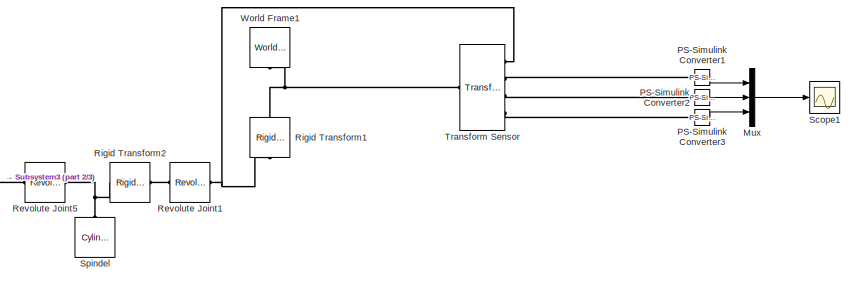
[diagram: root canvas - part 1/3, top right region]
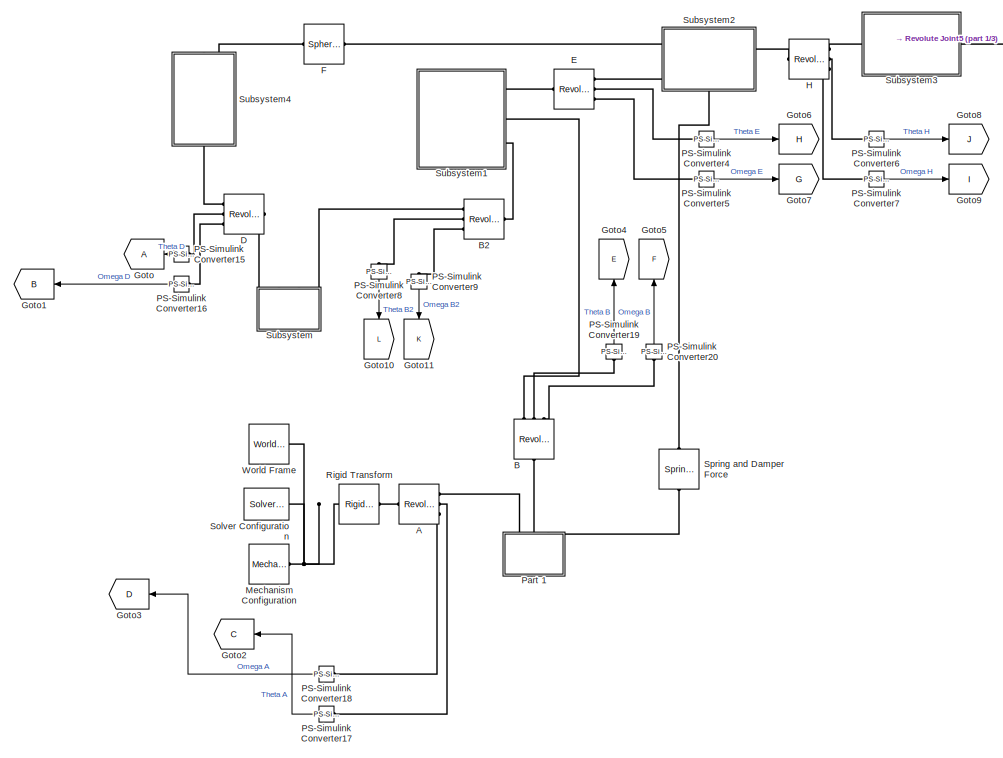
[diagram: root canvas - part 2/3, central region]
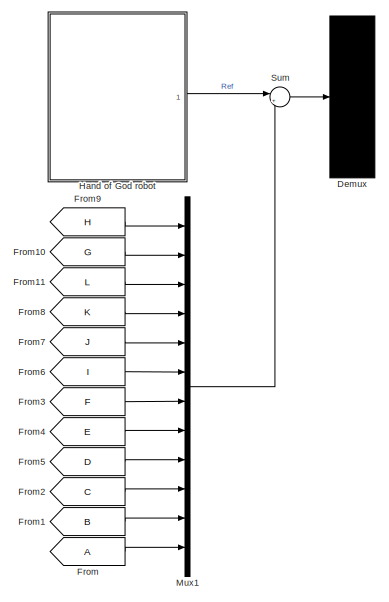
[diagram: root canvas - part 3/3, bottom left region]
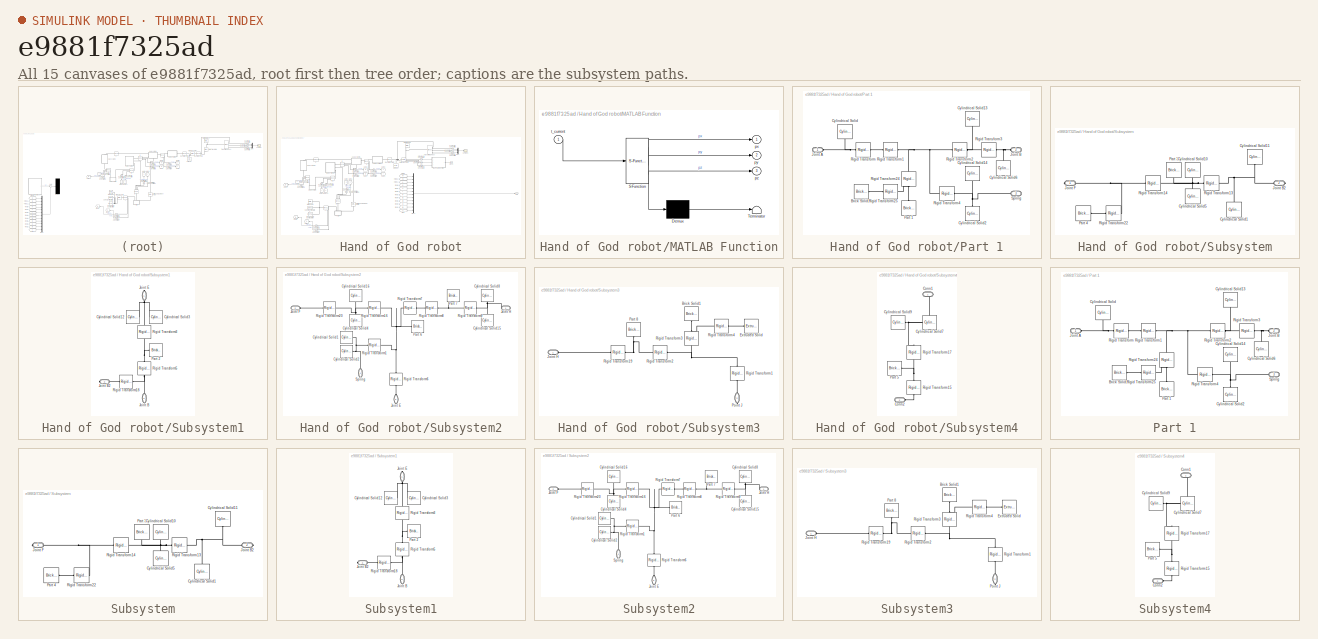
[diagram: thumbnail index - all 15 canvases of the model, root first then tree order]
MODEL slx_e9881f7325ad
KIND model
CONFIG AbsTol = auto
CONFIG EnableMultiTasking = off
CONFIG FixedStep = auto
CONFIG MaxStep = auto
CONFIG MinStep = auto
CONFIG RelTol = 1e-3
CONFIG SampleTimeConstraint = Unconstrained
CONFIG SolverName = VariableStepAuto
CONFIG StartTime = 0.0
CONFIG StopTime = 4
BLOCK [Reference] A  REF=sm_lib/Joints/Revolute Joint
  Ports = [0, 0, 0, 0, 0, 1, 3]
  SourceBlock = sm_lib/Joints/Revolute Joint
  SourceProductBaseCode = MS
  SourceType = Revolute Joint
BLOCK [Reference] B  REF=sm_lib/Joints/Revolute Joint
  NameLocation = right
  Ports = [0, 0, 0, 0, 0, 1, 3]
  SourceBlock = sm_lib/Joints/Revolute Joint
  SourceProductBaseCode = MS
  SourceType = Revolute Joint
BLOCK [Reference] B2  REF=sm_lib/Joints/Revolute Joint
  NameLocation = top
  Ports = [0, 0, 0, 0, 0, 1, 3]
  SourceBlock = sm_lib/Joints/Revolute Joint
  SourceProductBaseCode = MS
  SourceType = Revolute Joint
BLOCK [Reference] D  REF=sm_lib/Joints/Revolute Joint
  NameLocation = top
  Ports = [0, 0, 0, 0, 0, 1, 3]
  SourceBlock = sm_lib/Joints/Revolute Joint
  SourceProductBaseCode = MS
  SourceType = Revolute Joint
BLOCK [Demux] Demux
  DisplayOption = none
  Outputs = 12
  Ports = [1, 12]
BLOCK [Reference] E  REF=sm_lib/Joints/Revolute Joint
  Ports = [0, 0, 0, 0, 0, 1, 3]
  SourceBlock = sm_lib/Joints/Revolute Joint
  SourceProductBaseCode = MS
  SourceType = Revolute Joint
BLOCK [Reference] F  REF=sm_lib/Joints/Spherical
Joint
  Ports = [0, 0, 0, 0, 0, 1, 1]
  SourceBlock = sm_lib/Joints/Spherical\nJoint
  SourceProductBaseCode = MS
  SourceType = Spherical\nJoint
BLOCK [From] From
  IconDisplay = Signal name
BLOCK [From] From1
  GotoTag = B
  IconDisplay = Signal name
BLOCK [From] From10
  GotoTag = G
  IconDisplay = Signal name
BLOCK [From] From11
  GotoTag = L
  IconDisplay = Signal name
BLOCK [From] From2
  GotoTag = C
  IconDisplay = Signal name
BLOCK [From] From3
  GotoTag = F
  IconDisplay = Signal name
BLOCK [From] From4
  GotoTag = E
  IconDisplay = Signal name
BLOCK [From] From5
  GotoTag = D
  IconDisplay = Signal name
BLOCK [From] From6
  GotoTag = I
  IconDisplay = Signal name
BLOCK [From] From7
  GotoTag = J
  IconDisplay = Signal name
BLOCK [From] From8
  GotoTag = K
  IconDisplay = Signal name
BLOCK [From] From9
  GotoTag = H
  IconDisplay = Signal name
BLOCK [Goto] Goto
  NameLocation = top
BLOCK [Goto] Goto1
  GotoTag = B
  NameLocation = top
BLOCK [Goto] Goto10
  GotoTag = L
  NameLocation = left
BLOCK [Goto] Goto11
  GotoTag = K
  NameLocation = left
BLOCK [Goto] Goto2
  GotoTag = C
  NameLocation = top
BLOCK [Goto] Goto3
  GotoTag = D
  NameLocation = top
BLOCK [Goto] Goto4
  GotoTag = E
  NameLocation = right
BLOCK [Goto] Goto5
  GotoTag = F
  NameLocation = right
BLOCK [Goto] Goto6
  GotoTag = H
BLOCK [Goto] Goto7
  GotoTag = G
BLOCK [Goto] Goto8
  GotoTag = J
BLOCK [Goto] Goto9
  GotoTag = I
BLOCK [Reference] H  REF=sm_lib/Joints/Revolute Joint
  Ports = [0, 0, 0, 0, 0, 1, 3]
  SourceBlock = sm_lib/Joints/Revolute Joint
  SourceProductBaseCode = MS
  SourceType = Revolute Joint
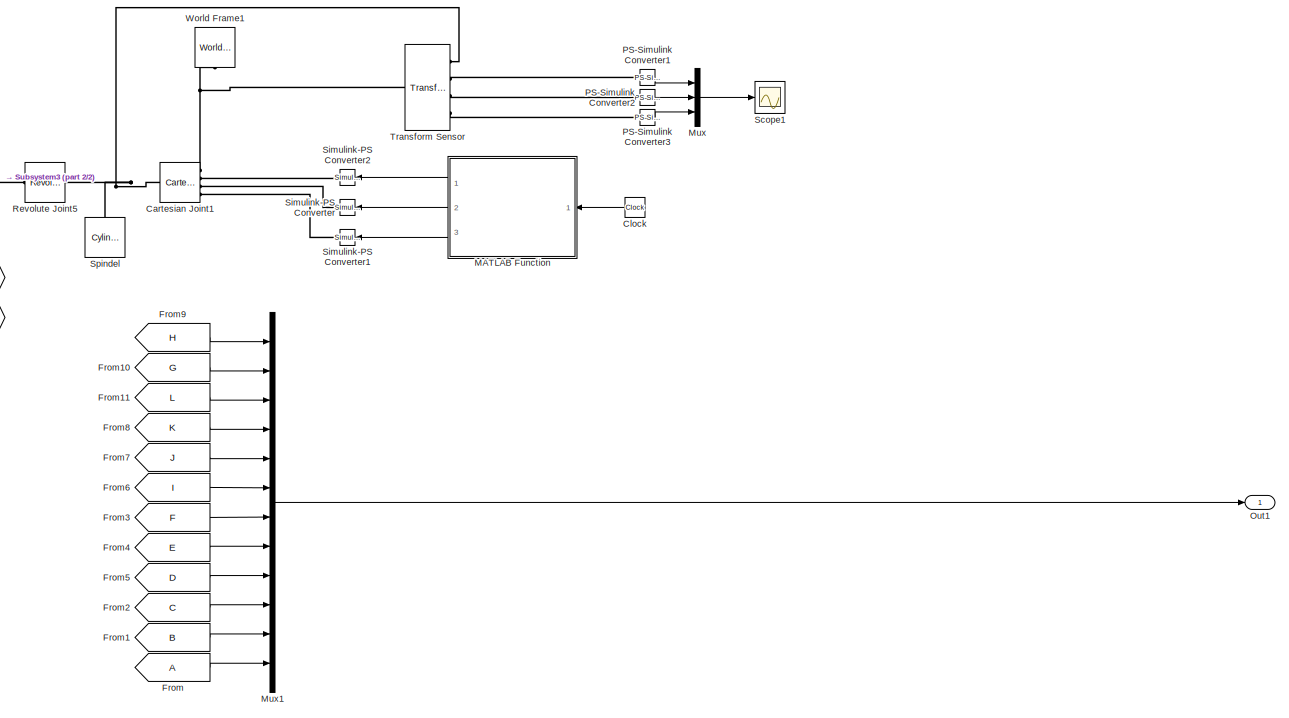
[diagram: Hand of God robot - part 1/2, right side, full height]
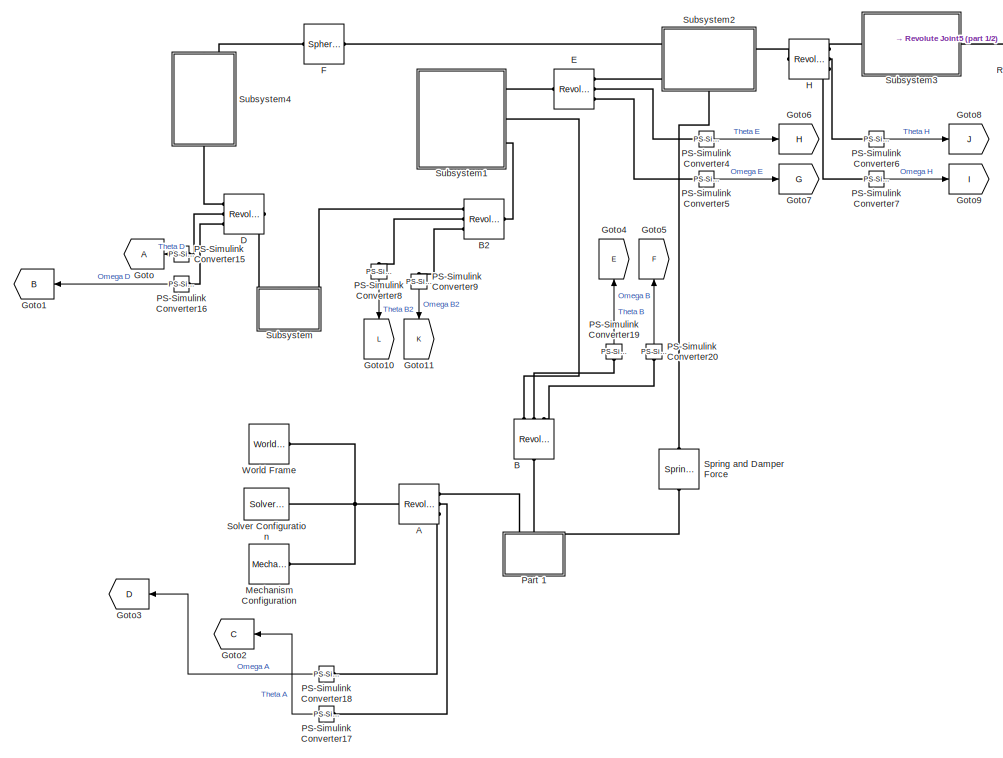
[diagram: Hand of God robot - part 2/2, left side, full height]
BLOCK [SubSystem] Hand of God robot
  Ports = [0, 1]
  RequestExecContextInheritance = off
BLOCK [Reference] Hand of God robot/A  REF=sm_lib/Joints/Revolute Joint
  Ports = [0, 0, 0, 0, 0, 1, 3]
  SourceBlock = sm_lib/Joints/Revolute Joint
  SourceProductBaseCode = MS
  SourceType = Revolute Joint
BLOCK [Reference] Hand of God robot/B  REF=sm_lib/Joints/Revolute Joint
  NameLocation = right
  Ports = [0, 0, 0, 0, 0, 1, 3]
  SourceBlock = sm_lib/Joints/Revolute Joint
  SourceProductBaseCode = MS
  SourceType = Revolute Joint
BLOCK [Reference] Hand of God robot/B2  REF=sm_lib/Joints/Revolute Joint
  NameLocation = top
  Ports = [0, 0, 0, 0, 0, 1, 3]
  SourceBlock = sm_lib/Joints/Revolute Joint
  SourceProductBaseCode = MS
  SourceType = Revolute Joint
BLOCK [Reference] Hand of God robot/Cartesian Joint1  REF=sm_lib/Joints/Cartesian
Joint
  NameLocation = top
  Ports = [0, 0, 0, 0, 0, 4, 1]
  SourceBlock = sm_lib/Joints/Cartesian\nJoint
  SourceProductBaseCode = MS
  SourceType = Cartesian\nJoint
BLOCK [Clock] Hand of God robot/Clock
  NameLocation = top
BLOCK [Reference] Hand of God robot/D  REF=sm_lib/Joints/Revolute Joint
  NameLocation = top
  Ports = [0, 0, 0, 0, 0, 1, 3]
  SourceBlock = sm_lib/Joints/Revolute Joint
  SourceProductBaseCode = MS
  SourceType = Revolute Joint
BLOCK [Reference] Hand of God robot/E  REF=sm_lib/Joints/Revolute Joint
  Ports = [0, 0, 0, 0, 0, 1, 3]
  SourceBlock = sm_lib/Joints/Revolute Joint
  SourceProductBaseCode = MS
  SourceType = Revolute Joint
BLOCK [Reference] Hand of God robot/F  REF=sm_lib/Joints/Spherical
Joint
  Ports = [0, 0, 0, 0, 0, 1, 1]
  SourceBlock = sm_lib/Joints/Spherical\nJoint
  SourceProductBaseCode = MS
  SourceType = Spherical\nJoint
BLOCK [From] Hand of God robot/From
  IconDisplay = Signal name
BLOCK [From] Hand of God robot/From1
  GotoTag = B
  IconDisplay = Signal name
BLOCK [From] Hand of God robot/From10
  GotoTag = G
  IconDisplay = Signal name
BLOCK [From] Hand of God robot/From11
  GotoTag = L
  IconDisplay = Signal name
BLOCK [From] Hand of God robot/From2
  GotoTag = C
  IconDisplay = Signal name
BLOCK [From] Hand of God robot/From3
  GotoTag = F
  IconDisplay = Signal name
BLOCK [From] Hand of God robot/From4
  GotoTag = E
  IconDisplay = Signal name
BLOCK [From] Hand of God robot/From5
  GotoTag = D
  IconDisplay = Signal name
BLOCK [From] Hand of God robot/From6
  GotoTag = I
  IconDisplay = Signal name
BLOCK [From] Hand of God robot/From7
  GotoTag = J
  IconDisplay = Signal name
BLOCK [From] Hand of God robot/From8
  GotoTag = K
  IconDisplay = Signal name
BLOCK [From] Hand of God robot/From9
  GotoTag = H
  IconDisplay = Signal name
BLOCK [Goto] Hand of God robot/Goto
  NameLocation = top
BLOCK [Goto] Hand of God robot/Goto1
  GotoTag = B
  NameLocation = top
BLOCK [Goto] Hand of God robot/Goto10
  GotoTag = L
  NameLocation = left
BLOCK [Goto] Hand of God robot/Goto11
  GotoTag = K
  NameLocation = left
BLOCK [Goto] Hand of God robot/Goto2
  GotoTag = C
  NameLocation = top
BLOCK [Goto] Hand of God robot/Goto3
  GotoTag = D
  NameLocation = top
BLOCK [Goto] Hand of God robot/Goto4
  GotoTag = E
  NameLocation = right
BLOCK [Goto] Hand of God robot/Goto5
  GotoTag = F
  NameLocation = right
BLOCK [Goto] Hand of God robot/Goto6
  GotoTag = H
BLOCK [Goto] Hand of God robot/Goto7
  GotoTag = G
BLOCK [Goto] Hand of God robot/Goto8
  GotoTag = J
BLOCK [Goto] Hand of God robot/Goto9
  GotoTag = I
BLOCK [Reference] Hand of God robot/H  REF=sm_lib/Joints/Revolute Joint
  Ports = [0, 0, 0, 0, 0, 1, 3]
  SourceBlock = sm_lib/Joints/Revolute Joint
  SourceProductBaseCode = MS
  SourceType = Revolute Joint
BLOCK [SubSystem] Hand of God robot/MATLAB Function
  ErrorFcn = Stateflow.Translate.translate
  NameLocation = top
  PermitHierarchicalResolution = ExplicitOnly
  Ports = [1, 3]
  RequestExecContextInheritance = off
  SFBlockType = MATLAB Function
  TreatAsAtomicUnit = on
BLOCK [Demux] Hand of God robot/MATLAB Function/ Demux 
  Outputs = 1
  Ports = [1, 1]
BLOCK [S-Function] Hand of God robot/MATLAB Function/ SFunction 
  EnableBusSupport = on
  FunctionName = sf_sfun
  PortCounts = [1 4]
  Ports = [1, 4]
  SFcnIsStateOwnerBlock = off
  SFunctionDeploymentMode = off
  Tag = Stateflow S-Function 1
BLOCK [Terminator] Hand of God robot/MATLAB Function/ Terminator 
BLOCK [Outport] Hand of God robot/MATLAB Function/px
  VectorParamsAs1DForOutWhenUnconnected = off
BLOCK [Outport] Hand of God robot/MATLAB Function/py
  Port = 2
  VectorParamsAs1DForOutWhenUnconnected = off
BLOCK [Outport] Hand of God robot/MATLAB Function/pz
  Port = 3
  VectorParamsAs1DForOutWhenUnconnected = off
BLOCK [Inport] Hand of God robot/MATLAB Function/t_current
BLOCK [Reference] Hand of God robot/Mechanism Configuration  REF=sm_lib/Utilities/Mechanism
Configuration
  Ports = [0, 0, 0, 0, 0, 0, 1]
  SourceBlock = sm_lib/Utilities/Mechanism\nConfiguration
  SourceProductBaseCode = MS
  SourceType = Mechanism\nConfiguration
BLOCK [Mux] Hand of God robot/Mux
  DisplayOption = bar
  Inputs = 3
  Ports = [3, 1]
BLOCK [Mux] Hand of God robot/Mux1
  DisplayOption = bar
  Inputs = 12
  Ports = [12, 1]
BLOCK [Outport] Hand of God robot/Out1
BLOCK [Reference] Hand of God robot/PS-Simulink Converter1  REF=nesl_utility/PS-Simulink
Converter
  Ports = [0, 1, 0, 0, 0, 1]
  SourceBlock = nesl_utility/PS-Simulink\nConverter
  SourceProductBaseCode = PW,SS
  SourceType = PS-Simulink\nConverter
BLOCK [Reference] Hand of God robot/PS-Simulink Converter15  REF=nesl_utility/PS-Simulink
Converter
  NameLocation = top
  Ports = [0, 1, 0, 0, 0, 1]
  SourceBlock = nesl_utility/PS-Simulink\nConverter
  SourceProductBaseCode = PW,SS
  SourceType = PS-Simulink\nConverter
BLOCK [Reference] Hand of God robot/PS-Simulink Converter16  REF=nesl_utility/PS-Simulink
Converter
  NameLocation = top
  Ports = [0, 1, 0, 0, 0, 1]
  SourceBlock = nesl_utility/PS-Simulink\nConverter
  SourceProductBaseCode = PW,SS
  SourceType = PS-Simulink\nConverter
BLOCK [Reference] Hand of God robot/PS-Simulink Converter17  REF=nesl_utility/PS-Simulink
Converter
  NameLocation = top
  Ports = [0, 1, 0, 0, 0, 1]
  SourceBlock = nesl_utility/PS-Simulink\nConverter
  SourceProductBaseCode = PW,SS
  SourceType = PS-Simulink\nConverter
BLOCK [Reference] Hand of God robot/PS-Simulink Converter18  REF=nesl_utility/PS-Simulink
Converter
  NameLocation = top
  Ports = [0, 1, 0, 0, 0, 1]
  SourceBlock = nesl_utility/PS-Simulink\nConverter
  SourceProductBaseCode = PW,SS
  SourceType = PS-Simulink\nConverter
BLOCK [Reference] Hand of God robot/PS-Simulink Converter19  REF=nesl_utility/PS-Simulink
Converter
  NameLocation = right
  Ports = [0, 1, 0, 0, 0, 1]
  SourceBlock = nesl_utility/PS-Simulink\nConverter
  SourceProductBaseCode = PW,SS
  SourceType = PS-Simulink\nConverter
BLOCK [Reference] Hand of God robot/PS-Simulink Converter2  REF=nesl_utility/PS-Simulink
Converter
  Ports = [0, 1, 0, 0, 0, 1]
  SourceBlock = nesl_utility/PS-Simulink\nConverter
  SourceProductBaseCode = PW,SS
  SourceType = PS-Simulink\nConverter
BLOCK [Reference] Hand of God robot/PS-Simulink Converter20  REF=nesl_utility/PS-Simulink
Converter
  NameLocation = right
  Ports = [0, 1, 0, 0, 0, 1]
  SourceBlock = nesl_utility/PS-Simulink\nConverter
  SourceProductBaseCode = PW,SS
  SourceType = PS-Simulink\nConverter
BLOCK [Reference] Hand of God robot/PS-Simulink Converter3  REF=nesl_utility/PS-Simulink
Converter
  Ports = [0, 1, 0, 0, 0, 1]
  SourceBlock = nesl_utility/PS-Simulink\nConverter
  SourceProductBaseCode = PW,SS
  SourceType = PS-Simulink\nConverter
BLOCK [Reference] Hand of God robot/PS-Simulink Converter4  REF=nesl_utility/PS-Simulink
Converter
  Ports = [0, 1, 0, 0, 0, 1]
  SourceBlock = nesl_utility/PS-Simulink\nConverter
  SourceProductBaseCode = PW,SS
  SourceType = PS-Simulink\nConverter
BLOCK [Reference] Hand of God robot/PS-Simulink Converter5  REF=nesl_utility/PS-Simulink
Converter
  Ports = [0, 1, 0, 0, 0, 1]
  SourceBlock = nesl_utility/PS-Simulink\nConverter
  SourceProductBaseCode = PW,SS
  SourceType = PS-Simulink\nConverter
BLOCK [Reference] Hand of God robot/PS-Simulink Converter6  REF=nesl_utility/PS-Simulink
Converter
  Ports = [0, 1, 0, 0, 0, 1]
  SourceBlock = nesl_utility/PS-Simulink\nConverter
  SourceProductBaseCode = PW,SS
  SourceType = PS-Simulink\nConverter
BLOCK [Reference] Hand of God robot/PS-Simulink Converter7  REF=nesl_utility/PS-Simulink
Converter
  Ports = [0, 1, 0, 0, 0, 1]
  SourceBlock = nesl_utility/PS-Simulink\nConverter
  SourceProductBaseCode = PW,SS
  SourceType = PS-Simulink\nConverter
BLOCK [Reference] Hand of God robot/PS-Simulink Converter8  REF=nesl_utility/PS-Simulink
Converter
  NameLocation = left
  Ports = [0, 1, 0, 0, 0, 1]
  SourceBlock = nesl_utility/PS-Simulink\nConverter
  SourceProductBaseCode = PW,SS
  SourceType = PS-Simulink\nConverter
BLOCK [Reference] Hand of God robot/PS-Simulink Converter9  REF=nesl_utility/PS-Simulink
Converter
  NameLocation = left
  Ports = [0, 1, 0, 0, 0, 1]
  SourceBlock = nesl_utility/PS-Simulink\nConverter
  SourceProductBaseCode = PW,SS
  SourceType = PS-Simulink\nConverter
BLOCK [SubSystem] Hand of God robot/Part 1
  NameLocation = left
  Ports = [0, 0, 0, 0, 0, 3]
  RequestExecContextInheritance = off
BLOCK [Reference] Hand of God robot/Part 1/Brick Solid10  REF=sm_lib/Body Elements/Brick Solid
  Ports = [0, 0, 0, 0, 0, 0, 1]
  SourceBlock = sm_lib/Body Elements/Brick Solid
  SourceProductBaseCode = MS
  SourceType = Brick Solid
BLOCK [Reference] Hand of God robot/Part 1/Cylindrical Solid  REF=sm_lib/Body Elements/Cylindrical Solid
  NameLocation = left
  Ports = [0, 0, 0, 0, 0, 0, 1]
  SourceBlock = sm_lib/Body Elements/Cylindrical Solid
  SourceProductBaseCode = MS
  SourceType = Cylindrical Solid
BLOCK [Reference] Hand of God robot/Part 1/Cylindrical Solid13  REF=sm_lib/Body Elements/Cylindrical Solid
  NameLocation = left
  Ports = [0, 0, 0, 0, 0, 0, 1]
  SourceBlock = sm_lib/Body Elements/Cylindrical Solid
  SourceProductBaseCode = MS
  SourceType = Cylindrical Solid
BLOCK [Reference] Hand of God robot/Part 1/Cylindrical Solid14  REF=sm_lib/Body Elements/Cylindrical Solid
  NameLocation = left
  Ports = [0, 0, 0, 0, 0, 0, 1]
  SourceBlock = sm_lib/Body Elements/Cylindrical Solid
  SourceProductBaseCode = MS
  SourceType = Cylindrical Solid
BLOCK [Reference] Hand of God robot/Part 1/Cylindrical Solid2  REF=sm_lib/Body Elements/Cylindrical Solid
  NameLocation = right
  Ports = [0, 0, 0, 0, 0, 0, 1]
  SourceBlock = sm_lib/Body Elements/Cylindrical Solid
  SourceProductBaseCode = MS
  SourceType = Cylindrical Solid
BLOCK [Reference] Hand of God robot/Part 1/Cylindrical Solid6  REF=sm_lib/Body Elements/Cylindrical Solid
  NameLocation = right
  Ports = [0, 0, 0, 0, 0, 0, 1]
  SourceBlock = sm_lib/Body Elements/Cylindrical Solid
  SourceProductBaseCode = MS
  SourceType = Cylindrical Solid
BLOCK [PMIOPort] Hand of God robot/Part 1/Joint A
  Side = Left
BLOCK [PMIOPort] Hand of God robot/Part 1/Joint B
  NameLocation = top
  Port = 2
  Side = Left
BLOCK [Reference] Hand of God robot/Part 1/Part 1  REF=sm_lib/Body Elements/Brick Solid
  NameLocation = right
  Ports = [0, 0, 0, 0, 0, 0, 1]
  SourceBlock = sm_lib/Body Elements/Brick Solid
  SourceProductBaseCode = MS
  SourceType = Brick Solid
BLOCK [Reference] Hand of God robot/Part 1/Rigid Transform  REF=sm_lib/Frames and
Transforms/Rigid
Transform
  Ports = [0, 0, 0, 0, 0, 1, 1]
  SourceBlock = sm_lib/Frames and\nTransforms/Rigid\nTransform
  SourceProductBaseCode = MS
  SourceType = Rigid\nTransform
BLOCK [Reference] Hand of God robot/Part 1/Rigid Transform1  REF=sm_lib/Frames and
Transforms/Rigid
Transform
  Ports = [0, 0, 0, 0, 0, 1, 1]
  SourceBlock = sm_lib/Frames and\nTransforms/Rigid\nTransform
  SourceProductBaseCode = MS
  SourceType = Rigid\nTransform
BLOCK [Reference] Hand of God robot/Part 1/Rigid Transform2  REF=sm_lib/Frames and
Transforms/Rigid
Transform
  Ports = [0, 0, 0, 0, 0, 1, 1]
  SourceBlock = sm_lib/Frames and\nTransforms/Rigid\nTransform
  SourceProductBaseCode = MS
  SourceType = Rigid\nTransform
BLOCK [Reference] Hand of God robot/Part 1/Rigid Transform24  REF=sm_lib/Frames and
Transforms/Rigid
Transform
  NameLocation = right
  Ports = [0, 0, 0, 0, 0, 1, 1]
  SourceBlock = sm_lib/Frames and\nTransforms/Rigid\nTransform
  SourceProductBaseCode = MS
  SourceType = Rigid\nTransform
BLOCK [Reference] Hand of God robot/Part 1/Rigid Transform25  REF=sm_lib/Frames and
Transforms/Rigid
Transform
  NameLocation = top
  Ports = [0, 0, 0, 0, 0, 1, 1]
  SourceBlock = sm_lib/Frames and\nTransforms/Rigid\nTransform
  SourceProductBaseCode = MS
  SourceType = Rigid\nTransform
BLOCK [Reference] Hand of God robot/Part 1/Rigid Transform3  REF=sm_lib/Frames and
Transforms/Rigid
Transform
  Ports = [0, 0, 0, 0, 0, 1, 1]
  SourceBlock = sm_lib/Frames and\nTransforms/Rigid\nTransform
  SourceProductBaseCode = MS
  SourceType = Rigid\nTransform
BLOCK [Reference] Hand of God robot/Part 1/Rigid Transform4  REF=sm_lib/Frames and
Transforms/Rigid
Transform
  Ports = [0, 0, 0, 0, 0, 1, 1]
  SourceBlock = sm_lib/Frames and\nTransforms/Rigid\nTransform
  SourceProductBaseCode = MS
  SourceType = Rigid\nTransform
BLOCK [PMIOPort] Hand of God robot/Part 1/Spring
  NameLocation = top
  Port = 3
  Side = Left
BLOCK [Reference] Hand of God robot/Revolute Joint5  REF=sm_lib/Joints/Revolute Joint
  NameLocation = top
  Ports = [0, 0, 0, 0, 0, 1, 1]
  SourceBlock = sm_lib/Joints/Revolute Joint
  SourceProductBaseCode = MS
  SourceType = Revolute Joint
BLOCK [Scope] Hand of God robot/Scope1
  Floating = off
  NumInputPorts = 1
  Ports = [1]
  ScopeSpecificationString = Simulink.scopes.TimeScopeBlockCfg('CurrentConfiguration', extmgr.ConfigurationSet(extmgr.Configuration('Core','General UI',true),extmgr.Configuration('Core','Source UI',true),extmgr.Configuration('Sources','WiredSimulink',true),extmgr.Configuration('Visuals','Time Domain',true,'SerializedDisplays',{struct('MinYLimReal','-0.85197','MaxYLimReal','2.33564','YLabelReal','','MinYLimMag','0.00000','MaxY...<+1429ch>
BLOCK [Reference] Hand of God robot/Simulink-PS Converter  REF=nesl_utility/Simulink-PS
Converter
  NameLocation = top
  Ports = [1, 0, 0, 0, 0, 0, 1]
  SourceBlock = nesl_utility/Simulink-PS\nConverter
  SourceProductBaseCode = SS
  SourceType = Simulink-PS\nConverter
BLOCK [Reference] Hand of God robot/Simulink-PS Converter1  REF=nesl_utility/Simulink-PS
Converter
  NameLocation = top
  Ports = [1, 0, 0, 0, 0, 0, 1]
  SourceBlock = nesl_utility/Simulink-PS\nConverter
  SourceProductBaseCode = SS
  SourceType = Simulink-PS\nConverter
BLOCK [Reference] Hand of God robot/Simulink-PS Converter2  REF=nesl_utility/Simulink-PS
Converter
  NameLocation = top
  Ports = [1, 0, 0, 0, 0, 0, 1]
  SourceBlock = nesl_utility/Simulink-PS\nConverter
  SourceProductBaseCode = SS
  SourceType = Simulink-PS\nConverter
BLOCK [Reference] Hand of God robot/Solver Configuration  REF=nesl_utility/Solver
Configuration
  Ports = [0, 0, 0, 0, 0, 0, 1]
  SourceBlock = nesl_utility/Solver\nConfiguration
  SourceProductBaseCode = PW,SS
  SourceType = Solver\nConfiguration
BLOCK [Reference] Hand of God robot/Spindel  REF=sm_lib/Body Elements/Cylindrical Solid
  NameLocation = right
  Ports = [0, 0, 0, 0, 0, 0, 1]
  SourceBlock = sm_lib/Body Elements/Cylindrical Solid
  SourceProductBaseCode = MS
  SourceType = Cylindrical Solid
BLOCK [Reference] Hand of God robot/Spring and Damper Force  REF=sm_lib/Forces and
Torques/Spring and
Damper Force
  NameLocation = right
  Ports = [0, 0, 0, 0, 0, 1, 1]
  SourceBlock = sm_lib/Forces and\nTorques/Spring and\nDamper Force
  SourceProductBaseCode = MS
  SourceType = Spring and\nDamper Force
BLOCK [SubSystem] Hand of God robot/Subsystem
  NameLocation = right
  Ports = [0, 0, 0, 0, 0, 0, 2]
  RequestExecContextInheritance = off
BLOCK [Reference] Hand of God robot/Subsystem/Cylindrical Solid1  REF=sm_lib/Body Elements/Cylindrical Solid
  NameLocation = right
  Ports = [0, 0, 0, 0, 0, 0, 1]
  SourceBlock = sm_lib/Body Elements/Cylindrical Solid
  SourceProductBaseCode = MS
  SourceType = Cylindrical Solid
BLOCK [Reference] Hand of God robot/Subsystem/Cylindrical Solid10  REF=sm_lib/Body Elements/Cylindrical Solid
  NameLocation = left
  Ports = [0, 0, 0, 0, 0, 0, 1]
  SourceBlock = sm_lib/Body Elements/Cylindrical Solid
  SourceProductBaseCode = MS
  SourceType = Cylindrical Solid
BLOCK [Reference] Hand of God robot/Subsystem/Cylindrical Solid11  REF=sm_lib/Body Elements/Cylindrical Solid
  Ports = [0, 0, 0, 0, 0, 0, 1]
  SourceBlock = sm_lib/Body Elements/Cylindrical Solid
  SourceProductBaseCode = MS
  SourceType = Cylindrical Solid
BLOCK [Reference] Hand of God robot/Subsystem/Cylindrical Solid5  REF=sm_lib/Body Elements/Cylindrical Solid
  NameLocation = right
  Ports = [0, 0, 0, 0, 0, 0, 1]
  SourceBlock = sm_lib/Body Elements/Cylindrical Solid
  SourceProductBaseCode = MS
  SourceType = Cylindrical Solid
BLOCK [PMIOPort] Hand of God robot/Subsystem/Joint B2
  Port = 2
  Side = Right
BLOCK [PMIOPort] Hand of God robot/Subsystem/Joint F
  NameLocation = top
  Side = Right
BLOCK [Reference] Hand of God robot/Subsystem/Part 3  REF=sm_lib/Body Elements/Brick Solid
  NameLocation = left
  Ports = [0, 0, 0, 0, 0, 0, 1]
  SourceBlock = sm_lib/Body Elements/Brick Solid
  SourceProductBaseCode = MS
  SourceType = Brick Solid
BLOCK [Reference] Hand of God robot/Subsystem/Part 4  REF=sm_lib/Body Elements/Brick Solid
  Ports = [0, 0, 0, 0, 0, 0, 1]
  SourceBlock = sm_lib/Body Elements/Brick Solid
  SourceProductBaseCode = MS
  SourceType = Brick Solid
BLOCK [Reference] Hand of God robot/Subsystem/Rigid Transform13  REF=sm_lib/Frames and
Transforms/Rigid
Transform
  NameLocation = top
  Ports = [0, 0, 0, 0, 0, 1, 1]
  SourceBlock = sm_lib/Frames and\nTransforms/Rigid\nTransform
  SourceProductBaseCode = MS
  SourceType = Rigid\nTransform
BLOCK [Reference] Hand of God robot/Subsystem/Rigid Transform14  REF=sm_lib/Frames and
Transforms/Rigid
Transform
  NameLocation = top
  Ports = [0, 0, 0, 0, 0, 1, 1]
  SourceBlock = sm_lib/Frames and\nTransforms/Rigid\nTransform
  SourceProductBaseCode = MS
  SourceType = Rigid\nTransform
BLOCK [Reference] Hand of God robot/Subsystem/Rigid Transform22  REF=sm_lib/Frames and
Transforms/Rigid
Transform
  NameLocation = top
  Ports = [0, 0, 0, 0, 0, 1, 1]
  SourceBlock = sm_lib/Frames and\nTransforms/Rigid\nTransform
  SourceProductBaseCode = MS
  SourceType = Rigid\nTransform
BLOCK [SubSystem] Hand of God robot/Subsystem1
  Ports = [0, 0, 0, 0, 0, 0, 3]
  RequestExecContextInheritance = off
BLOCK [Reference] Hand of God robot/Subsystem1/Cylindrical Solid12  REF=sm_lib/Body Elements/Cylindrical Solid
  Ports = [0, 0, 0, 0, 0, 0, 1]
  SourceBlock = sm_lib/Body Elements/Cylindrical Solid
  SourceProductBaseCode = MS
  SourceType = Cylindrical Solid
BLOCK [Reference] Hand of God robot/Subsystem1/Cylindrical Solid3  REF=sm_lib/Body Elements/Cylindrical Solid
  NameLocation = top
  Ports = [0, 0, 0, 0, 0, 0, 1]
  SourceBlock = sm_lib/Body Elements/Cylindrical Solid
  SourceProductBaseCode = MS
  SourceType = Cylindrical Solid
BLOCK [PMIOPort] Hand of God robot/Subsystem1/Joint B
  NameLocation = right
  Port = 2
  Side = Right
BLOCK [PMIOPort] Hand of God robot/Subsystem1/Joint B2
  Port = 3
  Side = Right
BLOCK [PMIOPort] Hand of God robot/Subsystem1/Joint E
  NameLocation = right
  Side = Right
BLOCK [Reference] Hand of God robot/Subsystem1/Part 2  REF=sm_lib/Body Elements/Brick Solid
  NameLocation = top
  Ports = [0, 0, 0, 0, 0, 0, 1]
  SourceBlock = sm_lib/Body Elements/Brick Solid
  SourceProductBaseCode = MS
  SourceType = Brick Solid
BLOCK [Reference] Hand of God robot/Subsystem1/Rigid Transform18  REF=sm_lib/Frames and
Transforms/Rigid
Transform
  NameLocation = top
  Ports = [0, 0, 0, 0, 0, 1, 1]
  SourceBlock = sm_lib/Frames and\nTransforms/Rigid\nTransform
  SourceProductBaseCode = MS
  SourceType = Rigid\nTransform
BLOCK [Reference] Hand of God robot/Subsystem1/Rigid Transform3  REF=sm_lib/Frames and
Transforms/Rigid
Transform
  NameLocation = right
  Ports = [0, 0, 0, 0, 0, 1, 1]
  SourceBlock = sm_lib/Frames and\nTransforms/Rigid\nTransform
  SourceProductBaseCode = MS
  SourceType = Rigid\nTransform
BLOCK [Reference] Hand of God robot/Subsystem1/Rigid Transform5  REF=sm_lib/Frames and
Transforms/Rigid
Transform
  NameLocation = right
  Ports = [0, 0, 0, 0, 0, 1, 1]
  SourceBlock = sm_lib/Frames and\nTransforms/Rigid\nTransform
  SourceProductBaseCode = MS
  SourceType = Rigid\nTransform
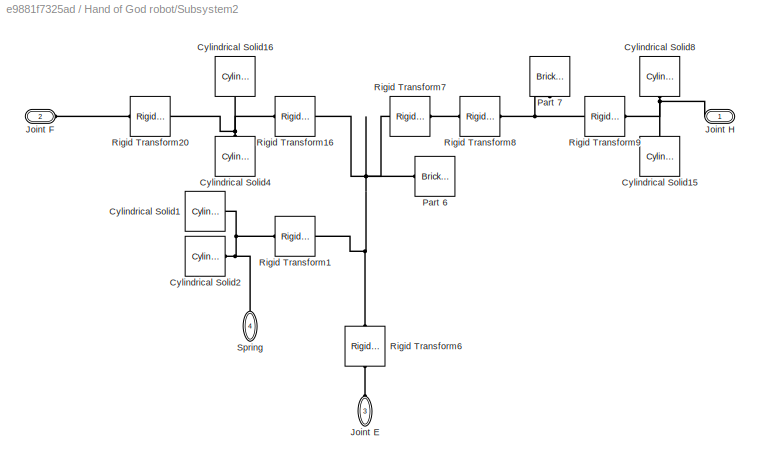
BLOCK [SubSystem] Hand of God robot/Subsystem2
  PortSchema = {"entries":[{"content":{"sides":[{"content":{"connectorIds":["LConn1","LConn2"]},"type":"ConnectorPlacement.EquallySpacedRectSide","uuid":"da7f6e69-6578-4727-91f4-7ed436fea6bc"},{"content":{"connectorIds":["RConn1"],"side":"RIGHT"},"type":"ConnectorPlacement.EquallySpacedRectSide","uuid":"90b1d93d-cac2-41cd-9d62-161eb0db7bf2"},{"content":{"connectorIds":[],"side":"TOP"},"type":"ConnectorPlacement....<+406ch>
  Ports = [0, 0, 0, 0, 0, 2, 2]
  RequestExecContextInheritance = off
BLOCK [Reference] Hand of God robot/Subsystem2/Cylindrical Solid1  REF=sm_lib/Body Elements/Cylindrical Solid
  Ports = [0, 0, 0, 0, 0, 0, 1]
  SourceBlock = sm_lib/Body Elements/Cylindrical Solid
  SourceProductBaseCode = MS
  SourceType = Cylindrical Solid
BLOCK [Reference] Hand of God robot/Subsystem2/Cylindrical Solid15  REF=sm_lib/Body Elements/Cylindrical Solid
  NameLocation = right
  Ports = [0, 0, 0, 0, 0, 0, 1]
  SourceBlock = sm_lib/Body Elements/Cylindrical Solid
  SourceProductBaseCode = MS
  SourceType = Cylindrical Solid
BLOCK [Reference] Hand of God robot/Subsystem2/Cylindrical Solid16  REF=sm_lib/Body Elements/Cylindrical Solid
  NameLocation = left
  Ports = [0, 0, 0, 0, 0, 0, 1]
  SourceBlock = sm_lib/Body Elements/Cylindrical Solid
  SourceProductBaseCode = MS
  SourceType = Cylindrical Solid
BLOCK [Reference] Hand of God robot/Subsystem2/Cylindrical Solid2  REF=sm_lib/Body Elements/Cylindrical Solid
  Ports = [0, 0, 0, 0, 0, 0, 1]
  SourceBlock = sm_lib/Body Elements/Cylindrical Solid
  SourceProductBaseCode = MS
  SourceType = Cylindrical Solid
BLOCK [Reference] Hand of God robot/Subsystem2/Cylindrical Solid4  REF=sm_lib/Body Elements/Cylindrical Solid
  NameLocation = right
  Ports = [0, 0, 0, 0, 0, 0, 1]
  SourceBlock = sm_lib/Body Elements/Cylindrical Solid
  SourceProductBaseCode = MS
  SourceType = Cylindrical Solid
BLOCK [Reference] Hand of God robot/Subsystem2/Cylindrical Solid8  REF=sm_lib/Body Elements/Cylindrical Solid
  NameLocation = left
  Ports = [0, 0, 0, 0, 0, 0, 1]
  SourceBlock = sm_lib/Body Elements/Cylindrical Solid
  SourceProductBaseCode = MS
  SourceType = Cylindrical Solid
BLOCK [PMIOPort] Hand of God robot/Subsystem2/Joint E
  NameLocation = right
  Port = 3
  Side = Left
BLOCK [PMIOPort] Hand of God robot/Subsystem2/Joint F
  Port = 2
  Side = Left
BLOCK [PMIOPort] Hand of God robot/Subsystem2/Joint H
  Side = Right
BLOCK [Reference] Hand of God robot/Subsystem2/Part 6  REF=sm_lib/Body Elements/Brick Solid
  NameLocation = top
  Ports = [0, 0, 0, 0, 0, 0, 1]
  SourceBlock = sm_lib/Body Elements/Brick Solid
  SourceProductBaseCode = MS
  SourceType = Brick Solid
BLOCK [Reference] Hand of God robot/Subsystem2/Part 7  REF=sm_lib/Body Elements/Brick Solid
  NameLocation = left
  Ports = [0, 0, 0, 0, 0, 0, 1]
  SourceBlock = sm_lib/Body Elements/Brick Solid
  SourceProductBaseCode = MS
  SourceType = Brick Solid
BLOCK [Reference] Hand of God robot/Subsystem2/Rigid Transform1  REF=sm_lib/Frames and
Transforms/Rigid
Transform
  NameLocation = top
  Ports = [0, 0, 0, 0, 0, 1, 1]
  SourceBlock = sm_lib/Frames and\nTransforms/Rigid\nTransform
  SourceProductBaseCode = MS
  SourceType = Rigid\nTransform
BLOCK [Reference] Hand of God robot/Subsystem2/Rigid Transform16  REF=sm_lib/Frames and
Transforms/Rigid
Transform
  Ports = [0, 0, 0, 0, 0, 1, 1]
  SourceBlock = sm_lib/Frames and\nTransforms/Rigid\nTransform
  SourceProductBaseCode = MS
  SourceType = Rigid\nTransform
BLOCK [Reference] Hand of God robot/Subsystem2/Rigid Transform20  REF=sm_lib/Frames and
Transforms/Rigid
Transform
  Ports = [0, 0, 0, 0, 0, 1, 1]
  SourceBlock = sm_lib/Frames and\nTransforms/Rigid\nTransform
  SourceProductBaseCode = MS
  SourceType = Rigid\nTransform
BLOCK [Reference] Hand of God robot/Subsystem2/Rigid Transform6  REF=sm_lib/Frames and
Transforms/Rigid
Transform
  NameLocation = right
  Ports = [0, 0, 0, 0, 0, 1, 1]
  SourceBlock = sm_lib/Frames and\nTransforms/Rigid\nTransform
  SourceProductBaseCode = MS
  SourceType = Rigid\nTransform
BLOCK [Reference] Hand of God robot/Subsystem2/Rigid Transform7  REF=sm_lib/Frames and
Transforms/Rigid
Transform
  Ports = [0, 0, 0, 0, 0, 1, 1]
  SourceBlock = sm_lib/Frames and\nTransforms/Rigid\nTransform
  SourceProductBaseCode = MS
  SourceType = Rigid\nTransform
BLOCK [Reference] Hand of God robot/Subsystem2/Rigid Transform8  REF=sm_lib/Frames and
Transforms/Rigid
Transform
  Ports = [0, 0, 0, 0, 0, 1, 1]
  SourceBlock = sm_lib/Frames and\nTransforms/Rigid\nTransform
  SourceProductBaseCode = MS
  SourceType = Rigid\nTransform
BLOCK [Reference] Hand of God robot/Subsystem2/Rigid Transform9  REF=sm_lib/Frames and
Transforms/Rigid
Transform
  Ports = [0, 0, 0, 0, 0, 1, 1]
  SourceBlock = sm_lib/Frames and\nTransforms/Rigid\nTransform
  SourceProductBaseCode = MS
  SourceType = Rigid\nTransform
BLOCK [PMIOPort] Hand of God robot/Subsystem2/Spring
  NameLocation = left
  Port = 4
  Side = Right
BLOCK [SubSystem] Hand of God robot/Subsystem3
  Ports = [0, 0, 0, 0, 0, 1, 1]
  RequestExecContextInheritance = off
BLOCK [Reference] Hand of God robot/Subsystem3/Brick Solid1  REF=sm_lib/Body Elements/Brick Solid
  NameLocation = left
  Ports = [0, 0, 0, 0, 0, 0, 1]
  SourceBlock = sm_lib/Body Elements/Brick Solid
  SourceProductBaseCode = MS
  SourceType = Brick Solid
BLOCK [Reference] Hand of God robot/Subsystem3/Extruded Solid  REF=sm_lib/Body Elements/Extruded Solid
  NameLocation = top
  Ports = [0, 0, 0, 0, 0, 0, 1]
  SourceBlock = sm_lib/Body Elements/Extruded Solid
  SourceProductBaseCode = MS
  SourceType = Extruded Solid
BLOCK [PMIOPort] Hand of God robot/Subsystem3/Joint H
  Side = Left
BLOCK [Reference] Hand of God robot/Subsystem3/Part 8  REF=sm_lib/Body Elements/Brick Solid
  NameLocation = left
  Ports = [0, 0, 0, 0, 0, 0, 1]
  SourceBlock = sm_lib/Body Elements/Brick Solid
  SourceProductBaseCode = MS
  SourceType = Brick Solid
BLOCK [PMIOPort] Hand of God robot/Subsystem3/Point J
  NameLocation = left
  Port = 2
  Side = Right
BLOCK [Reference] Hand of God robot/Subsystem3/Rigid Transform1  REF=sm_lib/Frames and
Transforms/Rigid
Transform
  NameLocation = right
  Ports = [0, 0, 0, 0, 0, 1, 1]
  SourceBlock = sm_lib/Frames and\nTransforms/Rigid\nTransform
  SourceProductBaseCode = MS
  SourceType = Rigid\nTransform
BLOCK [Reference] Hand of God robot/Subsystem3/Rigid Transform19  REF=sm_lib/Frames and
Transforms/Rigid
Transform
  Ports = [0, 0, 0, 0, 0, 1, 1]
  SourceBlock = sm_lib/Frames and\nTransforms/Rigid\nTransform
  SourceProductBaseCode = MS
  SourceType = Rigid\nTransform
BLOCK [Reference] Hand of God robot/Subsystem3/Rigid Transform2  REF=sm_lib/Frames and
Transforms/Rigid
Transform
  Ports = [0, 0, 0, 0, 0, 1, 1]
  SourceBlock = sm_lib/Frames and\nTransforms/Rigid\nTransform
  SourceProductBaseCode = MS
  SourceType = Rigid\nTransform
BLOCK [Reference] Hand of God robot/Subsystem3/Rigid Transform3  REF=sm_lib/Frames and
Transforms/Rigid
Transform
  NameLocation = right
  Ports = [0, 0, 0, 0, 0, 1, 1]
  SourceBlock = sm_lib/Frames and\nTransforms/Rigid\nTransform
  SourceProductBaseCode = MS
  SourceType = Rigid\nTransform
BLOCK [Reference] Hand of God robot/Subsystem3/Rigid Transform4  REF=sm_lib/Frames and
Transforms/Rigid
Transform
  NameLocation = top
  Ports = [0, 0, 0, 0, 0, 1, 1]
  SourceBlock = sm_lib/Frames and\nTransforms/Rigid\nTransform
  SourceProductBaseCode = MS
  SourceType = Rigid\nTransform
BLOCK [SubSystem] Hand of God robot/Subsystem4
  NameLocation = right
  Ports = [0, 0, 0, 0, 0, 1, 1]
  RequestExecContextInheritance = off
BLOCK [PMIOPort] Hand of God robot/Subsystem4/Conn1
  Side = Right
BLOCK [PMIOPort] Hand of God robot/Subsystem4/Conn2
  Port = 2
  Side = Left
BLOCK [Reference] Hand of God robot/Subsystem4/Cylindrical Solid7  REF=sm_lib/Body Elements/Cylindrical Solid
  NameLocation = top
  Ports = [0, 0, 0, 0, 0, 0, 1]
  SourceBlock = sm_lib/Body Elements/Cylindrical Solid
  SourceProductBaseCode = MS
  SourceType = Cylindrical Solid
BLOCK [Reference] Hand of God robot/Subsystem4/Cylindrical Solid9  REF=sm_lib/Body Elements/Cylindrical Solid
  Ports = [0, 0, 0, 0, 0, 0, 1]
  SourceBlock = sm_lib/Body Elements/Cylindrical Solid
  SourceProductBaseCode = MS
  SourceType = Cylindrical Solid
BLOCK [Reference] Hand of God robot/Subsystem4/Part 5  REF=sm_lib/Body Elements/Brick Solid
  Ports = [0, 0, 0, 0, 0, 0, 1]
  SourceBlock = sm_lib/Body Elements/Brick Solid
  SourceProductBaseCode = MS
  SourceType = Brick Solid
BLOCK [Reference] Hand of God robot/Subsystem4/Rigid Transform15  REF=sm_lib/Frames and
Transforms/Rigid
Transform
  NameLocation = right
  Ports = [0, 0, 0, 0, 0, 1, 1]
  SourceBlock = sm_lib/Frames and\nTransforms/Rigid\nTransform
  SourceProductBaseCode = MS
  SourceType = Rigid\nTransform
BLOCK [Reference] Hand of God robot/Subsystem4/Rigid Transform17  REF=sm_lib/Frames and
Transforms/Rigid
Transform
  NameLocation = right
  Ports = [0, 0, 0, 0, 0, 1, 1]
  SourceBlock = sm_lib/Frames and\nTransforms/Rigid\nTransform
  SourceProductBaseCode = MS
  SourceType = Rigid\nTransform
BLOCK [Reference] Hand of God robot/Transform Sensor  REF=sm_lib/Frames and
Transforms/Transform
Sensor
  Ports = [0, 0, 0, 0, 0, 1, 4]
  SourceBlock = sm_lib/Frames and\nTransforms/Transform\nSensor
  SourceProductBaseCode = MS
  SourceType = Transform\nSensor
BLOCK [Reference] Hand of God robot/World Frame  REF=sm_lib/Frames and
Transforms/World Frame
  Ports = [0, 0, 0, 0, 0, 0, 1]
  SourceBlock = sm_lib/Frames and\nTransforms/World Frame
  SourceProductBaseCode = MS
  SourceType = World Frame
BLOCK [Reference] Hand of God robot/World Frame1  REF=sm_lib/Frames and
Transforms/World Frame
  NameLocation = left
  Ports = [0, 0, 0, 0, 0, 0, 1]
  SourceBlock = sm_lib/Frames and\nTransforms/World Frame
  SourceProductBaseCode = MS
  SourceType = World Frame
BLOCK [Reference] Mechanism Configuration  REF=sm_lib/Utilities/Mechanism
Configuration
  Ports = [0, 0, 0, 0, 0, 0, 1]
  SourceBlock = sm_lib/Utilities/Mechanism\nConfiguration
  SourceProductBaseCode = MS
  SourceType = Mechanism\nConfiguration
BLOCK [Mux] Mux
  DisplayOption = bar
  Inputs = 3
  Ports = [3, 1]
BLOCK [Mux] Mux1
  DisplayOption = bar
  Inputs = 12
  Ports = [12, 1]
BLOCK [Reference] PS-Simulink Converter1  REF=nesl_utility/PS-Simulink
Converter
  Ports = [0, 1, 0, 0, 0, 1]
  SourceBlock = nesl_utility/PS-Simulink\nConverter
  SourceProductBaseCode = PW,SS
  SourceType = PS-Simulink\nConverter
BLOCK [Reference] PS-Simulink Converter15  REF=nesl_utility/PS-Simulink
Converter
  NameLocation = top
  Ports = [0, 1, 0, 0, 0, 1]
  SourceBlock = nesl_utility/PS-Simulink\nConverter
  SourceProductBaseCode = PW,SS
  SourceType = PS-Simulink\nConverter
BLOCK [Reference] PS-Simulink Converter16  REF=nesl_utility/PS-Simulink
Converter
  NameLocation = top
  Ports = [0, 1, 0, 0, 0, 1]
  SourceBlock = nesl_utility/PS-Simulink\nConverter
  SourceProductBaseCode = PW,SS
  SourceType = PS-Simulink\nConverter
BLOCK [Reference] PS-Simulink Converter17  REF=nesl_utility/PS-Simulink
Converter
  NameLocation = top
  Ports = [0, 1, 0, 0, 0, 1]
  SourceBlock = nesl_utility/PS-Simulink\nConverter
  SourceProductBaseCode = PW,SS
  SourceType = PS-Simulink\nConverter
BLOCK [Reference] PS-Simulink Converter18  REF=nesl_utility/PS-Simulink
Converter
  NameLocation = top
  Ports = [0, 1, 0, 0, 0, 1]
  SourceBlock = nesl_utility/PS-Simulink\nConverter
  SourceProductBaseCode = PW,SS
  SourceType = PS-Simulink\nConverter
BLOCK [Reference] PS-Simulink Converter19  REF=nesl_utility/PS-Simulink
Converter
  NameLocation = right
  Ports = [0, 1, 0, 0, 0, 1]
  SourceBlock = nesl_utility/PS-Simulink\nConverter
  SourceProductBaseCode = PW,SS
  SourceType = PS-Simulink\nConverter
BLOCK [Reference] PS-Simulink Converter2  REF=nesl_utility/PS-Simulink
Converter
  Ports = [0, 1, 0, 0, 0, 1]
  SourceBlock = nesl_utility/PS-Simulink\nConverter
  SourceProductBaseCode = PW,SS
  SourceType = PS-Simulink\nConverter
BLOCK [Reference] PS-Simulink Converter20  REF=nesl_utility/PS-Simulink
Converter
  NameLocation = right
  Ports = [0, 1, 0, 0, 0, 1]
  SourceBlock = nesl_utility/PS-Simulink\nConverter
  SourceProductBaseCode = PW,SS
  SourceType = PS-Simulink\nConverter
BLOCK [Reference] PS-Simulink Converter3  REF=nesl_utility/PS-Simulink
Converter
  Ports = [0, 1, 0, 0, 0, 1]
  SourceBlock = nesl_utility/PS-Simulink\nConverter
  SourceProductBaseCode = PW,SS
  SourceType = PS-Simulink\nConverter
BLOCK [Reference] PS-Simulink Converter4  REF=nesl_utility/PS-Simulink
Converter
  Ports = [0, 1, 0, 0, 0, 1]
  SourceBlock = nesl_utility/PS-Simulink\nConverter
  SourceProductBaseCode = PW,SS
  SourceType = PS-Simulink\nConverter
BLOCK [Reference] PS-Simulink Converter5  REF=nesl_utility/PS-Simulink
Converter
  Ports = [0, 1, 0, 0, 0, 1]
  SourceBlock = nesl_utility/PS-Simulink\nConverter
  SourceProductBaseCode = PW,SS
  SourceType = PS-Simulink\nConverter
BLOCK [Reference] PS-Simulink Converter6  REF=nesl_utility/PS-Simulink
Converter
  Ports = [0, 1, 0, 0, 0, 1]
  SourceBlock = nesl_utility/PS-Simulink\nConverter
  SourceProductBaseCode = PW,SS
  SourceType = PS-Simulink\nConverter
BLOCK [Reference] PS-Simulink Converter7  REF=nesl_utility/PS-Simulink
Converter
  Ports = [0, 1, 0, 0, 0, 1]
  SourceBlock = nesl_utility/PS-Simulink\nConverter
  SourceProductBaseCode = PW,SS
  SourceType = PS-Simulink\nConverter
BLOCK [Reference] PS-Simulink Converter8  REF=nesl_utility/PS-Simulink
Converter
  NameLocation = left
  Ports = [0, 1, 0, 0, 0, 1]
  SourceBlock = nesl_utility/PS-Simulink\nConverter
  SourceProductBaseCode = PW,SS
  SourceType = PS-Simulink\nConverter
BLOCK [Reference] PS-Simulink Converter9  REF=nesl_utility/PS-Simulink
Converter
  NameLocation = left
  Ports = [0, 1, 0, 0, 0, 1]
  SourceBlock = nesl_utility/PS-Simulink\nConverter
  SourceProductBaseCode = PW,SS
  SourceType = PS-Simulink\nConverter
BLOCK [SubSystem] Part 1
  NameLocation = left
  Ports = [0, 0, 0, 0, 0, 3]
  RequestExecContextInheritance = off
BLOCK [Reference] Part 1/Brick Solid10  REF=sm_lib/Body Elements/Brick Solid
  Ports = [0, 0, 0, 0, 0, 0, 1]
  SourceBlock = sm_lib/Body Elements/Brick Solid
  SourceProductBaseCode = MS
  SourceType = Brick Solid
BLOCK [Reference] Part 1/Cylindrical Solid  REF=sm_lib/Body Elements/Cylindrical Solid
  NameLocation = left
  Ports = [0, 0, 0, 0, 0, 0, 1]
  SourceBlock = sm_lib/Body Elements/Cylindrical Solid
  SourceProductBaseCode = MS
  SourceType = Cylindrical Solid
BLOCK [Reference] Part 1/Cylindrical Solid13  REF=sm_lib/Body Elements/Cylindrical Solid
  NameLocation = left
  Ports = [0, 0, 0, 0, 0, 0, 1]
  SourceBlock = sm_lib/Body Elements/Cylindrical Solid
  SourceProductBaseCode = MS
  SourceType = Cylindrical Solid
BLOCK [Reference] Part 1/Cylindrical Solid14  REF=sm_lib/Body Elements/Cylindrical Solid
  NameLocation = left
  Ports = [0, 0, 0, 0, 0, 0, 1]
  SourceBlock = sm_lib/Body Elements/Cylindrical Solid
  SourceProductBaseCode = MS
  SourceType = Cylindrical Solid
BLOCK [Reference] Part 1/Cylindrical Solid2  REF=sm_lib/Body Elements/Cylindrical Solid
  NameLocation = right
  Ports = [0, 0, 0, 0, 0, 0, 1]
  SourceBlock = sm_lib/Body Elements/Cylindrical Solid
  SourceProductBaseCode = MS
  SourceType = Cylindrical Solid
BLOCK [Reference] Part 1/Cylindrical Solid6  REF=sm_lib/Body Elements/Cylindrical Solid
  NameLocation = right
  Ports = [0, 0, 0, 0, 0, 0, 1]
  SourceBlock = sm_lib/Body Elements/Cylindrical Solid
  SourceProductBaseCode = MS
  SourceType = Cylindrical Solid
BLOCK [PMIOPort] Part 1/Joint A
  Side = Left
BLOCK [PMIOPort] Part 1/Joint B
  NameLocation = top
  Port = 2
  Side = Left
BLOCK [Reference] Part 1/Part 1  REF=sm_lib/Body Elements/Brick Solid
  NameLocation = right
  Ports = [0, 0, 0, 0, 0, 0, 1]
  SourceBlock = sm_lib/Body Elements/Brick Solid
  SourceProductBaseCode = MS
  SourceType = Brick Solid
BLOCK [Reference] Part 1/Rigid Transform  REF=sm_lib/Frames and
Transforms/Rigid
Transform
  Ports = [0, 0, 0, 0, 0, 1, 1]
  SourceBlock = sm_lib/Frames and\nTransforms/Rigid\nTransform
  SourceProductBaseCode = MS
  SourceType = Rigid\nTransform
BLOCK [Reference] Part 1/Rigid Transform1  REF=sm_lib/Frames and
Transforms/Rigid
Transform
  Ports = [0, 0, 0, 0, 0, 1, 1]
  SourceBlock = sm_lib/Frames and\nTransforms/Rigid\nTransform
  SourceProductBaseCode = MS
  SourceType = Rigid\nTransform
BLOCK [Reference] Part 1/Rigid Transform2  REF=sm_lib/Frames and
Transforms/Rigid
Transform
  Ports = [0, 0, 0, 0, 0, 1, 1]
  SourceBlock = sm_lib/Frames and\nTransforms/Rigid\nTransform
  SourceProductBaseCode = MS
  SourceType = Rigid\nTransform
BLOCK [Reference] Part 1/Rigid Transform24  REF=sm_lib/Frames and
Transforms/Rigid
Transform
  NameLocation = right
  Ports = [0, 0, 0, 0, 0, 1, 1]
  SourceBlock = sm_lib/Frames and\nTransforms/Rigid\nTransform
  SourceProductBaseCode = MS
  SourceType = Rigid\nTransform
BLOCK [Reference] Part 1/Rigid Transform25  REF=sm_lib/Frames and
Transforms/Rigid
Transform
  NameLocation = top
  Ports = [0, 0, 0, 0, 0, 1, 1]
  SourceBlock = sm_lib/Frames and\nTransforms/Rigid\nTransform
  SourceProductBaseCode = MS
  SourceType = Rigid\nTransform
BLOCK [Reference] Part 1/Rigid Transform3  REF=sm_lib/Frames and
Transforms/Rigid
Transform
  Ports = [0, 0, 0, 0, 0, 1, 1]
  SourceBlock = sm_lib/Frames and\nTransforms/Rigid\nTransform
  SourceProductBaseCode = MS
  SourceType = Rigid\nTransform
BLOCK [Reference] Part 1/Rigid Transform4  REF=sm_lib/Frames and
Transforms/Rigid
Transform
  Ports = [0, 0, 0, 0, 0, 1, 1]
  SourceBlock = sm_lib/Frames and\nTransforms/Rigid\nTransform
  SourceProductBaseCode = MS
  SourceType = Rigid\nTransform
BLOCK [PMIOPort] Part 1/Spring
  NameLocation = top
  Port = 3
  Side = Left
BLOCK [Reference] Revolute Joint1  REF=sm_lib/Joints/Revolute Joint
  NameLocation = top
  Ports = [0, 0, 0, 0, 0, 1, 1]
  SourceBlock = sm_lib/Joints/Revolute Joint
  SourceProductBaseCode = MS
  SourceType = Revolute Joint
BLOCK [Reference] Revolute Joint5  REF=sm_lib/Joints/Revolute Joint
  Ports = [0, 0, 0, 0, 0, 1, 1]
  SourceBlock = sm_lib/Joints/Revolute Joint
  SourceProductBaseCode = MS
  SourceType = Revolute Joint
BLOCK [Reference] Rigid Transform  REF=sm_lib/Frames and
Transforms/Rigid
Transform
  Ports = [0, 0, 0, 0, 0, 1, 1]
  SourceBlock = sm_lib/Frames and\nTransforms/Rigid\nTransform
  SourceProductBaseCode = MS
  SourceType = Rigid\nTransform
BLOCK [Reference] Rigid Transform1  REF=sm_lib/Frames and
Transforms/Rigid
Transform
  NameLocation = left
  Ports = [0, 0, 0, 0, 0, 1, 1]
  SourceBlock = sm_lib/Frames and\nTransforms/Rigid\nTransform
  SourceProductBaseCode = MS
  SourceType = Rigid\nTransform
BLOCK [Reference] Rigid Transform2  REF=sm_lib/Frames and
Transforms/Rigid
Transform
  Ports = [0, 0, 0, 0, 0, 1, 1]
  SourceBlock = sm_lib/Frames and\nTransforms/Rigid\nTransform
  SourceProductBaseCode = MS
  SourceType = Rigid\nTransform
BLOCK [Scope] Scope1
  Floating = off
  NumInputPorts = 1
  Ports = [1]
  ScopeSpecificationString = Simulink.scopes.TimeScopeBlockCfg('CurrentConfiguration', extmgr.ConfigurationSet(extmgr.Configuration('Core','General UI',true),extmgr.Configuration('Core','Source UI',true),extmgr.Configuration('Sources','WiredSimulink',true,'DataLoggingVariableName','ScopeData1'),extmgr.Configuration('Visuals','Time Domain',true,'SerializedDisplays',{struct('MinYLimReal','-0.85197','MaxYLimReal','2.33564','YLab...<+1468ch>
BLOCK [Reference] Solver Configuration  REF=nesl_utility/Solver
Configuration
  Ports = [0, 0, 0, 0, 0, 0, 1]
  SourceBlock = nesl_utility/Solver\nConfiguration
  SourceProductBaseCode = PW,SS
  SourceType = Solver\nConfiguration
BLOCK [Reference] Spindel  REF=sm_lib/Body Elements/Cylindrical Solid
  NameLocation = right
  Ports = [0, 0, 0, 0, 0, 0, 1]
  SourceBlock = sm_lib/Body Elements/Cylindrical Solid
  SourceProductBaseCode = MS
  SourceType = Cylindrical Solid
BLOCK [Reference] Spring and Damper Force  REF=sm_lib/Forces and
Torques/Spring and
Damper Force
  NameLocation = right
  Ports = [0, 0, 0, 0, 0, 1, 1]
  SourceBlock = sm_lib/Forces and\nTorques/Spring and\nDamper Force
  SourceProductBaseCode = MS
  SourceType = Spring and\nDamper Force
BLOCK [SubSystem] Subsystem
  NameLocation = right
  Ports = [0, 0, 0, 0, 0, 0, 2]
  RequestExecContextInheritance = off
BLOCK [Reference] Subsystem/Cylindrical Solid1  REF=sm_lib/Body Elements/Cylindrical Solid
  NameLocation = right
  Ports = [0, 0, 0, 0, 0, 0, 1]
  SourceBlock = sm_lib/Body Elements/Cylindrical Solid
  SourceProductBaseCode = MS
  SourceType = Cylindrical Solid
BLOCK [Reference] Subsystem/Cylindrical Solid10  REF=sm_lib/Body Elements/Cylindrical Solid
  NameLocation = left
  Ports = [0, 0, 0, 0, 0, 0, 1]
  SourceBlock = sm_lib/Body Elements/Cylindrical Solid
  SourceProductBaseCode = MS
  SourceType = Cylindrical Solid
BLOCK [Reference] Subsystem/Cylindrical Solid11  REF=sm_lib/Body Elements/Cylindrical Solid
  Ports = [0, 0, 0, 0, 0, 0, 1]
  SourceBlock = sm_lib/Body Elements/Cylindrical Solid
  SourceProductBaseCode = MS
  SourceType = Cylindrical Solid
BLOCK [Reference] Subsystem/Cylindrical Solid5  REF=sm_lib/Body Elements/Cylindrical Solid
  NameLocation = right
  Ports = [0, 0, 0, 0, 0, 0, 1]
  SourceBlock = sm_lib/Body Elements/Cylindrical Solid
  SourceProductBaseCode = MS
  SourceType = Cylindrical Solid
BLOCK [PMIOPort] Subsystem/Joint B2
  Port = 2
  Side = Right
BLOCK [PMIOPort] Subsystem/Joint F
  NameLocation = top
  Side = Right
BLOCK [Reference] Subsystem/Part 3  REF=sm_lib/Body Elements/Brick Solid
  NameLocation = left
  Ports = [0, 0, 0, 0, 0, 0, 1]
  SourceBlock = sm_lib/Body Elements/Brick Solid
  SourceProductBaseCode = MS
  SourceType = Brick Solid
BLOCK [Reference] Subsystem/Part 4  REF=sm_lib/Body Elements/Brick Solid
  Ports = [0, 0, 0, 0, 0, 0, 1]
  SourceBlock = sm_lib/Body Elements/Brick Solid
  SourceProductBaseCode = MS
  SourceType = Brick Solid
BLOCK [Reference] Subsystem/Rigid Transform13  REF=sm_lib/Frames and
Transforms/Rigid
Transform
  NameLocation = top
  Ports = [0, 0, 0, 0, 0, 1, 1]
  SourceBlock = sm_lib/Frames and\nTransforms/Rigid\nTransform
  SourceProductBaseCode = MS
  SourceType = Rigid\nTransform
BLOCK [Reference] Subsystem/Rigid Transform14  REF=sm_lib/Frames and
Transforms/Rigid
Transform
  NameLocation = top
  Ports = [0, 0, 0, 0, 0, 1, 1]
  SourceBlock = sm_lib/Frames and\nTransforms/Rigid\nTransform
  SourceProductBaseCode = MS
  SourceType = Rigid\nTransform
BLOCK [Reference] Subsystem/Rigid Transform22  REF=sm_lib/Frames and
Transforms/Rigid
Transform
  NameLocation = top
  Ports = [0, 0, 0, 0, 0, 1, 1]
  SourceBlock = sm_lib/Frames and\nTransforms/Rigid\nTransform
  SourceProductBaseCode = MS
  SourceType = Rigid\nTransform
BLOCK [SubSystem] Subsystem1
  Ports = [0, 0, 0, 0, 0, 0, 3]
  RequestExecContextInheritance = off
BLOCK [Reference] Subsystem1/Cylindrical Solid12  REF=sm_lib/Body Elements/Cylindrical Solid
  Ports = [0, 0, 0, 0, 0, 0, 1]
  SourceBlock = sm_lib/Body Elements/Cylindrical Solid
  SourceProductBaseCode = MS
  SourceType = Cylindrical Solid
BLOCK [Reference] Subsystem1/Cylindrical Solid3  REF=sm_lib/Body Elements/Cylindrical Solid
  NameLocation = top
  Ports = [0, 0, 0, 0, 0, 0, 1]
  SourceBlock = sm_lib/Body Elements/Cylindrical Solid
  SourceProductBaseCode = MS
  SourceType = Cylindrical Solid
BLOCK [PMIOPort] Subsystem1/Joint B
  NameLocation = right
  Port = 2
  Side = Right
BLOCK [PMIOPort] Subsystem1/Joint B2
  Port = 3
  Side = Right
BLOCK [PMIOPort] Subsystem1/Joint E
  NameLocation = right
  Side = Right
BLOCK [Reference] Subsystem1/Part 2  REF=sm_lib/Body Elements/Brick Solid
  NameLocation = top
  Ports = [0, 0, 0, 0, 0, 0, 1]
  SourceBlock = sm_lib/Body Elements/Brick Solid
  SourceProductBaseCode = MS
  SourceType = Brick Solid
BLOCK [Reference] Subsystem1/Rigid Transform18  REF=sm_lib/Frames and
Transforms/Rigid
Transform
  NameLocation = top
  Ports = [0, 0, 0, 0, 0, 1, 1]
  SourceBlock = sm_lib/Frames and\nTransforms/Rigid\nTransform
  SourceProductBaseCode = MS
  SourceType = Rigid\nTransform
BLOCK [Reference] Subsystem1/Rigid Transform3  REF=sm_lib/Frames and
Transforms/Rigid
Transform
  NameLocation = right
  Ports = [0, 0, 0, 0, 0, 1, 1]
  SourceBlock = sm_lib/Frames and\nTransforms/Rigid\nTransform
  SourceProductBaseCode = MS
  SourceType = Rigid\nTransform
BLOCK [Reference] Subsystem1/Rigid Transform5  REF=sm_lib/Frames and
Transforms/Rigid
Transform
  NameLocation = right
  Ports = [0, 0, 0, 0, 0, 1, 1]
  SourceBlock = sm_lib/Frames and\nTransforms/Rigid\nTransform
  SourceProductBaseCode = MS
  SourceType = Rigid\nTransform
BLOCK [SubSystem] Subsystem2
  PortSchema = {"entries":[{"content":{"sides":[{"content":{"connectorIds":["LConn1","LConn2"]},"type":"ConnectorPlacement.EquallySpacedRectSide","uuid":"da7f6e69-6578-4727-91f4-7ed436fea6bc"},{"content":{"connectorIds":["RConn1"],"side":"RIGHT"},"type":"ConnectorPlacement.EquallySpacedRectSide","uuid":"90b1d93d-cac2-41cd-9d62-161eb0db7bf2"},{"content":{"connectorIds":[],"side":"TOP"},"type":"ConnectorPlacement....<+406ch>
  Ports = [0, 0, 0, 0, 0, 2, 2]
  RequestExecContextInheritance = off
BLOCK [Reference] Subsystem2/Cylindrical Solid1  REF=sm_lib/Body Elements/Cylindrical Solid
  Ports = [0, 0, 0, 0, 0, 0, 1]
  SourceBlock = sm_lib/Body Elements/Cylindrical Solid
  SourceProductBaseCode = MS
  SourceType = Cylindrical Solid
BLOCK [Reference] Subsystem2/Cylindrical Solid15  REF=sm_lib/Body Elements/Cylindrical Solid
  NameLocation = right
  Ports = [0, 0, 0, 0, 0, 0, 1]
  SourceBlock = sm_lib/Body Elements/Cylindrical Solid
  SourceProductBaseCode = MS
  SourceType = Cylindrical Solid
BLOCK [Reference] Subsystem2/Cylindrical Solid16  REF=sm_lib/Body Elements/Cylindrical Solid
  NameLocation = left
  Ports = [0, 0, 0, 0, 0, 0, 1]
  SourceBlock = sm_lib/Body Elements/Cylindrical Solid
  SourceProductBaseCode = MS
  SourceType = Cylindrical Solid
BLOCK [Reference] Subsystem2/Cylindrical Solid2  REF=sm_lib/Body Elements/Cylindrical Solid
  Ports = [0, 0, 0, 0, 0, 0, 1]
  SourceBlock = sm_lib/Body Elements/Cylindrical Solid
  SourceProductBaseCode = MS
  SourceType = Cylindrical Solid
BLOCK [Reference] Subsystem2/Cylindrical Solid4  REF=sm_lib/Body Elements/Cylindrical Solid
  NameLocation = right
  Ports = [0, 0, 0, 0, 0, 0, 1]
  SourceBlock = sm_lib/Body Elements/Cylindrical Solid
  SourceProductBaseCode = MS
  SourceType = Cylindrical Solid
BLOCK [Reference] Subsystem2/Cylindrical Solid8  REF=sm_lib/Body Elements/Cylindrical Solid
  NameLocation = left
  Ports = [0, 0, 0, 0, 0, 0, 1]
  SourceBlock = sm_lib/Body Elements/Cylindrical Solid
  SourceProductBaseCode = MS
  SourceType = Cylindrical Solid
BLOCK [PMIOPort] Subsystem2/Joint E
  NameLocation = right
  Port = 3
  Side = Left
BLOCK [PMIOPort] Subsystem2/Joint F
  Port = 2
  Side = Left
BLOCK [PMIOPort] Subsystem2/Joint H
  Side = Right
BLOCK [Reference] Subsystem2/Part 6  REF=sm_lib/Body Elements/Brick Solid
  NameLocation = top
  Ports = [0, 0, 0, 0, 0, 0, 1]
  SourceBlock = sm_lib/Body Elements/Brick Solid
  SourceProductBaseCode = MS
  SourceType = Brick Solid
BLOCK [Reference] Subsystem2/Part 7  REF=sm_lib/Body Elements/Brick Solid
  NameLocation = left
  Ports = [0, 0, 0, 0, 0, 0, 1]
  SourceBlock = sm_lib/Body Elements/Brick Solid
  SourceProductBaseCode = MS
  SourceType = Brick Solid
BLOCK [Reference] Subsystem2/Rigid Transform1  REF=sm_lib/Frames and
Transforms/Rigid
Transform
  NameLocation = top
  Ports = [0, 0, 0, 0, 0, 1, 1]
  SourceBlock = sm_lib/Frames and\nTransforms/Rigid\nTransform
  SourceProductBaseCode = MS
  SourceType = Rigid\nTransform
BLOCK [Reference] Subsystem2/Rigid Transform16  REF=sm_lib/Frames and
Transforms/Rigid
Transform
  Ports = [0, 0, 0, 0, 0, 1, 1]
  SourceBlock = sm_lib/Frames and\nTransforms/Rigid\nTransform
  SourceProductBaseCode = MS
  SourceType = Rigid\nTransform
BLOCK [Reference] Subsystem2/Rigid Transform20  REF=sm_lib/Frames and
Transforms/Rigid
Transform
  Ports = [0, 0, 0, 0, 0, 1, 1]
  SourceBlock = sm_lib/Frames and\nTransforms/Rigid\nTransform
  SourceProductBaseCode = MS
  SourceType = Rigid\nTransform
BLOCK [Reference] Subsystem2/Rigid Transform6  REF=sm_lib/Frames and
Transforms/Rigid
Transform
  NameLocation = right
  Ports = [0, 0, 0, 0, 0, 1, 1]
  SourceBlock = sm_lib/Frames and\nTransforms/Rigid\nTransform
  SourceProductBaseCode = MS
  SourceType = Rigid\nTransform
BLOCK [Reference] Subsystem2/Rigid Transform7  REF=sm_lib/Frames and
Transforms/Rigid
Transform
  Ports = [0, 0, 0, 0, 0, 1, 1]
  SourceBlock = sm_lib/Frames and\nTransforms/Rigid\nTransform
  SourceProductBaseCode = MS
  SourceType = Rigid\nTransform
BLOCK [Reference] Subsystem2/Rigid Transform8  REF=sm_lib/Frames and
Transforms/Rigid
Transform
  Ports = [0, 0, 0, 0, 0, 1, 1]
  SourceBlock = sm_lib/Frames and\nTransforms/Rigid\nTransform
  SourceProductBaseCode = MS
  SourceType = Rigid\nTransform
BLOCK [Reference] Subsystem2/Rigid Transform9  REF=sm_lib/Frames and
Transforms/Rigid
Transform
  Ports = [0, 0, 0, 0, 0, 1, 1]
  SourceBlock = sm_lib/Frames and\nTransforms/Rigid\nTransform
  SourceProductBaseCode = MS
  SourceType = Rigid\nTransform
BLOCK [PMIOPort] Subsystem2/Spring
  NameLocation = left
  Port = 4
  Side = Right
BLOCK [SubSystem] Subsystem3
  Ports = [0, 0, 0, 0, 0, 1, 1]
  RequestExecContextInheritance = off
BLOCK [Reference] Subsystem3/Brick Solid1  REF=sm_lib/Body Elements/Brick Solid
  NameLocation = left
  Ports = [0, 0, 0, 0, 0, 0, 1]
  SourceBlock = sm_lib/Body Elements/Brick Solid
  SourceProductBaseCode = MS
  SourceType = Brick Solid
BLOCK [Reference] Subsystem3/Extruded Solid  REF=sm_lib/Body Elements/Extruded Solid
  NameLocation = top
  Ports = [0, 0, 0, 0, 0, 0, 1]
  SourceBlock = sm_lib/Body Elements/Extruded Solid
  SourceProductBaseCode = MS
  SourceType = Extruded Solid
BLOCK [PMIOPort] Subsystem3/Joint H
  Side = Left
BLOCK [Reference] Subsystem3/Part 8  REF=sm_lib/Body Elements/Brick Solid
  NameLocation = left
  Ports = [0, 0, 0, 0, 0, 0, 1]
  SourceBlock = sm_lib/Body Elements/Brick Solid
  SourceProductBaseCode = MS
  SourceType = Brick Solid
BLOCK [PMIOPort] Subsystem3/Point J
  NameLocation = left
  Port = 2
  Side = Right
BLOCK [Reference] Subsystem3/Rigid Transform1  REF=sm_lib/Frames and
Transforms/Rigid
Transform
  NameLocation = right
  Ports = [0, 0, 0, 0, 0, 1, 1]
  SourceBlock = sm_lib/Frames and\nTransforms/Rigid\nTransform
  SourceProductBaseCode = MS
  SourceType = Rigid\nTransform
BLOCK [Reference] Subsystem3/Rigid Transform19  REF=sm_lib/Frames and
Transforms/Rigid
Transform
  Ports = [0, 0, 0, 0, 0, 1, 1]
  SourceBlock = sm_lib/Frames and\nTransforms/Rigid\nTransform
  SourceProductBaseCode = MS
  SourceType = Rigid\nTransform
BLOCK [Reference] Subsystem3/Rigid Transform2  REF=sm_lib/Frames and
Transforms/Rigid
Transform
  Ports = [0, 0, 0, 0, 0, 1, 1]
  SourceBlock = sm_lib/Frames and\nTransforms/Rigid\nTransform
  SourceProductBaseCode = MS
  SourceType = Rigid\nTransform
BLOCK [Reference] Subsystem3/Rigid Transform3  REF=sm_lib/Frames and
Transforms/Rigid
Transform
  NameLocation = right
  Ports = [0, 0, 0, 0, 0, 1, 1]
  SourceBlock = sm_lib/Frames and\nTransforms/Rigid\nTransform
  SourceProductBaseCode = MS
  SourceType = Rigid\nTransform
BLOCK [Reference] Subsystem3/Rigid Transform4  REF=sm_lib/Frames and
Transforms/Rigid
Transform
  NameLocation = top
  Ports = [0, 0, 0, 0, 0, 1, 1]
  SourceBlock = sm_lib/Frames and\nTransforms/Rigid\nTransform
  SourceProductBaseCode = MS
  SourceType = Rigid\nTransform
BLOCK [SubSystem] Subsystem4
  NameLocation = right
  Ports = [0, 0, 0, 0, 0, 1, 1]
  RequestExecContextInheritance = off
BLOCK [PMIOPort] Subsystem4/Conn1
  Side = Right
BLOCK [PMIOPort] Subsystem4/Conn2
  Port = 2
  Side = Left
BLOCK [Reference] Subsystem4/Cylindrical Solid7  REF=sm_lib/Body Elements/Cylindrical Solid
  NameLocation = top
  Ports = [0, 0, 0, 0, 0, 0, 1]
  SourceBlock = sm_lib/Body Elements/Cylindrical Solid
  SourceProductBaseCode = MS
  SourceType = Cylindrical Solid
BLOCK [Reference] Subsystem4/Cylindrical Solid9  REF=sm_lib/Body Elements/Cylindrical Solid
  Ports = [0, 0, 0, 0, 0, 0, 1]
  SourceBlock = sm_lib/Body Elements/Cylindrical Solid
  SourceProductBaseCode = MS
  SourceType = Cylindrical Solid
BLOCK [Reference] Subsystem4/Part 5  REF=sm_lib/Body Elements/Brick Solid
  Ports = [0, 0, 0, 0, 0, 0, 1]
  SourceBlock = sm_lib/Body Elements/Brick Solid
  SourceProductBaseCode = MS
  SourceType = Brick Solid
BLOCK [Reference] Subsystem4/Rigid Transform15  REF=sm_lib/Frames and
Transforms/Rigid
Transform
  NameLocation = right
  Ports = [0, 0, 0, 0, 0, 1, 1]
  SourceBlock = sm_lib/Frames and\nTransforms/Rigid\nTransform
  SourceProductBaseCode = MS
  SourceType = Rigid\nTransform
BLOCK [Reference] Subsystem4/Rigid Transform17  REF=sm_lib/Frames and
Transforms/Rigid
Transform
  NameLocation = right
  Ports = [0, 0, 0, 0, 0, 1, 1]
  SourceBlock = sm_lib/Frames and\nTransforms/Rigid\nTransform
  SourceProductBaseCode = MS
  SourceType = Rigid\nTransform
BLOCK [Sum] Sum
  Inputs = |+-
  Ports = [2, 1]
BLOCK [Reference] Transform Sensor  REF=sm_lib/Frames and
Transforms/Transform
Sensor
  Ports = [0, 0, 0, 0, 0, 1, 4]
  SourceBlock = sm_lib/Frames and\nTransforms/Transform\nSensor
  SourceProductBaseCode = MS
  SourceType = Transform\nSensor
BLOCK [Reference] World Frame  REF=sm_lib/Frames and
Transforms/World Frame
  Ports = [0, 0, 0, 0, 0, 0, 1]
  SourceBlock = sm_lib/Frames and\nTransforms/World Frame
  SourceProductBaseCode = MS
  SourceType = World Frame
BLOCK [Reference] World Frame1  REF=sm_lib/Frames and
Transforms/World Frame
  NameLocation = left
  Ports = [0, 0, 0, 0, 0, 0, 1]
  SourceBlock = sm_lib/Frames and\nTransforms/World Frame
  SourceProductBaseCode = MS
  SourceType = World Frame
LINE From10:1 -> Mux1:2
LINE From11:1 -> Mux1:3
LINE From1:1 -> Mux1:11
LINE From2:1 -> Mux1:10
LINE From3:1 -> Mux1:7
LINE From4:1 -> Mux1:8
LINE From5:1 -> Mux1:9
LINE From6:1 -> Mux1:6
LINE From7:1 -> Mux1:5
LINE From8:1 -> Mux1:4
LINE From9:1 -> Mux1:1
LINE From:1 -> Mux1:12
LINE Hand of God robot/Clock:1 -> Hand of God robot/MATLAB Function:1
LINE Hand of God robot/From10:1 -> Hand of God robot/Mux1:2
LINE Hand of God robot/From11:1 -> Hand of God robot/Mux1:3
LINE Hand of God robot/From1:1 -> Hand of God robot/Mux1:11
LINE Hand of God robot/From2:1 -> Hand of God robot/Mux1:10
LINE Hand of God robot/From3:1 -> Hand of God robot/Mux1:7
LINE Hand of God robot/From4:1 -> Hand of God robot/Mux1:8
LINE Hand of God robot/From5:1 -> Hand of God robot/Mux1:9
LINE Hand of God robot/From6:1 -> Hand of God robot/Mux1:6
LINE Hand of God robot/From7:1 -> Hand of God robot/Mux1:5
LINE Hand of God robot/From8:1 -> Hand of God robot/Mux1:4
LINE Hand of God robot/From9:1 -> Hand of God robot/Mux1:1
LINE Hand of God robot/From:1 -> Hand of God robot/Mux1:12
LINE Hand of God robot/MATLAB Function:1 -> Hand of God robot/Simulink-PS Converter2:1
LINE Hand of God robot/MATLAB Function:2 -> Hand of God robot/Simulink-PS Converter:1
LINE Hand of God robot/MATLAB Function:3 -> Hand of God robot/Simulink-PS Converter1:1
LINE Hand of God robot/Mux1:1 -> Hand of God robot/Out1:1
LINE Hand of God robot/Mux:1 -> Hand of God robot/Scope1:1
LINE Hand of God robot/PS-Simulink Converter15:1 -> Hand of God robot/Goto:1
LINE Hand of God robot/PS-Simulink Converter16:1 -> Hand of God robot/Goto1:1
LINE Hand of God robot/PS-Simulink Converter17:1 -> Hand of God robot/Goto2:1
LINE Hand of God robot/PS-Simulink Converter18:1 -> Hand of God robot/Goto3:1
LINE Hand of God robot/PS-Simulink Converter19:1 -> Hand of God robot/Goto4:1
LINE Hand of God robot/PS-Simulink Converter1:1 -> Hand of God robot/Mux:1
LINE Hand of God robot/PS-Simulink Converter20:1 -> Hand of God robot/Goto5:1
LINE Hand of God robot/PS-Simulink Converter2:1 -> Hand of God robot/Mux:2
LINE Hand of God robot/PS-Simulink Converter3:1 -> Hand of God robot/Mux:3
LINE Hand of God robot/PS-Simulink Converter4:1 -> Hand of God robot/Goto6:1
LINE Hand of God robot/PS-Simulink Converter5:1 -> Hand of God robot/Goto7:1
LINE Hand of God robot/PS-Simulink Converter6:1 -> Hand of God robot/Goto8:1
LINE Hand of God robot/PS-Simulink Converter7:1 -> Hand of God robot/Goto9:1
LINE Hand of God robot/PS-Simulink Converter8:1 -> Hand of God robot/Goto10:1
LINE Hand of God robot/PS-Simulink Converter9:1 -> Hand of God robot/Goto11:1
LINE Hand of God robot:1 -> Sum:1
LINE Mux1:1 -> Sum:2
LINE Mux:1 -> Scope1:1
LINE PS-Simulink Converter15:1 -> Goto:1
LINE PS-Simulink Converter16:1 -> Goto1:1
LINE PS-Simulink Converter17:1 -> Goto2:1
LINE PS-Simulink Converter18:1 -> Goto3:1
LINE PS-Simulink Converter19:1 -> Goto4:1
LINE PS-Simulink Converter1:1 -> Mux:1
LINE PS-Simulink Converter20:1 -> Goto5:1
LINE PS-Simulink Converter2:1 -> Mux:2
LINE PS-Simulink Converter3:1 -> Mux:3
LINE PS-Simulink Converter4:1 -> Goto6:1
LINE PS-Simulink Converter5:1 -> Goto7:1
LINE PS-Simulink Converter6:1 -> Goto8:1
LINE PS-Simulink Converter7:1 -> Goto9:1
LINE PS-Simulink Converter8:1 -> Goto10:1
LINE PS-Simulink Converter9:1 -> Goto11:1
LINE Sum:1 -> Demux:1
PLINE A:LConn1 -- Rigid Transform:RConn1
PLINE A:RConn1 -- Part 1:LConn1
PLINE A:RConn2 -- PS-Simulink Converter17:LConn1
PLINE A:RConn3 -- PS-Simulink Converter18:LConn1
PLINE B2:LConn1 -- Subsystem1:RConn3
PLINE B2:RConn1 -- Subsystem:RConn2
PLINE B2:RConn2 -- PS-Simulink Converter8:LConn1
PLINE B2:RConn3 -- PS-Simulink Converter9:LConn1
PLINE B:LConn1 -- Part 1:LConn2
PLINE B:RConn1 -- Subsystem1:RConn2
PLINE B:RConn2 -- PS-Simulink Converter19:LConn1
PLINE B:RConn3 -- PS-Simulink Converter20:LConn1
PLINE D:LConn1 -- Subsystem:RConn1
PLINE D:RConn1 -- Subsystem4:LConn1
PLINE D:RConn2 -- PS-Simulink Converter15:LConn1
PLINE D:RConn3 -- PS-Simulink Converter16:LConn1
PLINE E:LConn1 -- Subsystem1:RConn1
PLINE E:RConn1 -- Subsystem2:LConn2
PLINE E:RConn2 -- PS-Simulink Converter4:LConn1
PLINE E:RConn3 -- PS-Simulink Converter5:LConn1
PLINE F:LConn1 -- Subsystem4:RConn1
PLINE F:RConn1 -- Subsystem2:LConn1
PLINE H:LConn1 -- Subsystem2:RConn1
PLINE H:RConn1 -- Subsystem3:LConn1
PLINE H:RConn2 -- PS-Simulink Converter6:LConn1
PLINE H:RConn3 -- PS-Simulink Converter7:LConn1
PNET net1: Hand of God robot/A:LConn1 -- Hand of God robot/Mechanism Configuration:RConn1 -- Hand of God robot/Solver Configuration:RConn1 -- Hand of God robot/World Frame:RConn1
PLINE Hand of God robot/A:RConn1 -- Hand of God robot/Part 1:LConn1
PLINE Hand of God robot/A:RConn2 -- Hand of God robot/PS-Simulink Converter17:LConn1
PLINE Hand of God robot/A:RConn3 -- Hand of God robot/PS-Simulink Converter18:LConn1
PLINE Hand of God robot/B2:LConn1 -- Hand of God robot/Subsystem1:RConn3
PLINE Hand of God robot/B2:RConn1 -- Hand of God robot/Subsystem:RConn2
PLINE Hand of God robot/B2:RConn2 -- Hand of God robot/PS-Simulink Converter8:LConn1
PLINE Hand of God robot/B2:RConn3 -- Hand of God robot/PS-Simulink Converter9:LConn1
PLINE Hand of God robot/B:LConn1 -- Hand of God robot/Part 1:LConn2
PLINE Hand of God robot/B:RConn1 -- Hand of God robot/Subsystem1:RConn2
PLINE Hand of God robot/B:RConn2 -- Hand of God robot/PS-Simulink Converter19:LConn1
PLINE Hand of God robot/B:RConn3 -- Hand of God robot/PS-Simulink Converter20:LConn1
PNET net2: Hand of God robot/Cartesian Joint1:LConn1 -- Hand of God robot/Transform Sensor:LConn1 -- Hand of God robot/World Frame1:RConn1
PLINE Hand of God robot/Cartesian Joint1:LConn2 -- Hand of God robot/Simulink-PS Converter2:RConn1
PLINE Hand of God robot/Cartesian Joint1:LConn3 -- Hand of God robot/Simulink-PS Converter:RConn1
PLINE Hand of God robot/Cartesian Joint1:LConn4 -- Hand of God robot/Simulink-PS Converter1:RConn1
PNET net3: Hand of God robot/Cartesian Joint1:RConn1 -- Hand of God robot/Revolute Joint5:LConn1 -- Hand of God robot/Spindel:RConn1 -- Hand of God robot/Transform Sensor:RConn1
PLINE Hand of God robot/D:LConn1 -- Hand of God robot/Subsystem:RConn1
PLINE Hand of God robot/D:RConn1 -- Hand of God robot/Subsystem4:LConn1
PLINE Hand of God robot/D:RConn2 -- Hand of God robot/PS-Simulink Converter15:LConn1
PLINE Hand of God robot/D:RConn3 -- Hand of God robot/PS-Simulink Converter16:LConn1
PLINE Hand of God robot/E:LConn1 -- Hand of God robot/Subsystem1:RConn1
PLINE Hand of God robot/E:RConn1 -- Hand of God robot/Subsystem2:LConn2
PLINE Hand of God robot/E:RConn2 -- Hand of God robot/PS-Simulink Converter4:LConn1
PLINE Hand of God robot/E:RConn3 -- Hand of God robot/PS-Simulink Converter5:LConn1
PLINE Hand of God robot/F:LConn1 -- Hand of God robot/Subsystem4:RConn1
PLINE Hand of God robot/F:RConn1 -- Hand of God robot/Subsystem2:LConn1
PLINE Hand of God robot/H:LConn1 -- Hand of God robot/Subsystem2:RConn1
PLINE Hand of God robot/H:RConn1 -- Hand of God robot/Subsystem3:LConn1
PLINE Hand of God robot/H:RConn2 -- Hand of God robot/PS-Simulink Converter6:LConn1
PLINE Hand of God robot/H:RConn3 -- Hand of God robot/PS-Simulink Converter7:LConn1
PLINE Hand of God robot/PS-Simulink Converter1:LConn1 -- Hand of God robot/Transform Sensor:RConn2
PLINE Hand of God robot/PS-Simulink Converter2:LConn1 -- Hand of God robot/Transform Sensor:RConn3
PLINE Hand of God robot/PS-Simulink Converter3:LConn1 -- Hand of God robot/Transform Sensor:RConn4
PLINE Hand of God robot/Part 1/Brick Solid10:RConn1 -- Hand of God robot/Part 1/Rigid Transform25:RConn1
PNET net4: Hand of God robot/Part 1/Cylindrical Solid13:RConn1 -- Hand of God robot/Part 1/Rigid Transform2:RConn1 -- Hand of God robot/Part 1/Rigid Transform3:LConn1
PNET net5: Hand of God robot/Part 1/Cylindrical Solid14:RConn1 -- Hand of God robot/Part 1/Cylindrical Solid2:RConn1 -- Hand of God robot/Part 1/Rigid Transform4:RConn1 -- Hand of God robot/Part 1/Spring:RConn1
PNET net6: Hand of God robot/Part 1/Cylindrical Solid6:RConn1 -- Hand of God robot/Part 1/Joint B:RConn1 -- Hand of God robot/Part 1/Rigid Transform3:RConn1
PNET net7: Hand of God robot/Part 1/Cylindrical Solid:RConn1 -- Hand of God robot/Part 1/Joint A:RConn1 -- Hand of God robot/Part 1/Rigid Transform:LConn1
PNET net8: Hand of God robot/Part 1/Part 1:RConn1 -- Hand of God robot/Part 1/Rigid Transform24:LConn1 -- Hand of God robot/Part 1/Rigid Transform25:LConn1
PLINE Hand of God robot/Part 1/Rigid Transform1:LConn1 -- Hand of God robot/Part 1/Rigid Transform:RConn1
PNET net9: Hand of God robot/Part 1/Rigid Transform1:RConn1 -- Hand of God robot/Part 1/Rigid Transform24:RConn1 -- Hand of God robot/Part 1/Rigid Transform2:LConn1 -- Hand of God robot/Part 1/Rigid Transform4:LConn1
PLINE Hand of God robot/Part 1:LConn3 -- Hand of God robot/Spring and Damper Force:LConn1
PLINE Hand of God robot/Revolute Joint5:RConn1 -- Hand of God robot/Subsystem3:RConn1
PLINE Hand of God robot/Spring and Damper Force:RConn1 -- Hand of God robot/Subsystem2:RConn2
PNET net10: Hand of God robot/Subsystem/Cylindrical Solid10:RConn1 -- Hand of God robot/Subsystem/Cylindrical Solid5:RConn1 -- Hand of God robot/Subsystem/Part 3:RConn1 -- Hand of God robot/Subsystem/Rigid Transform13:RConn1 -- Hand of God robot/Subsystem/Rigid Transform14:LConn1
PNET net11: Hand of God robot/Subsystem/Cylindrical Solid11:RConn1 -- Hand of God robot/Subsystem/Cylindrical Solid1:RConn1 -- Hand of God robot/Subsystem/Joint B2:RConn1 -- Hand of God robot/Subsystem/Rigid Transform13:LConn1
PNET net12: Hand of God robot/Subsystem/Joint F:RConn1 -- Hand of God robot/Subsystem/Rigid Transform14:RConn1 -- Hand of God robot/Subsystem/Rigid Transform22:LConn1
PLINE Hand of God robot/Subsystem/Part 4:RConn1 -- Hand of God robot/Subsystem/Rigid Transform22:RConn1
PNET net13: Hand of God robot/Subsystem1/Cylindrical Solid12:RConn1 -- Hand of God robot/Subsystem1/Cylindrical Solid3:RConn1 -- Hand of God robot/Subsystem1/Joint E:RConn1 -- Hand of God robot/Subsystem1/Rigid Transform3:RConn1
PLINE Hand of God robot/Subsystem1/Joint B2:RConn1 -- Hand of God robot/Subsystem1/Rigid Transform18:RConn1
PNET net14: Hand of God robot/Subsystem1/Joint B:RConn1 -- Hand of God robot/Subsystem1/Rigid Transform18:LConn1 -- Hand of God robot/Subsystem1/Rigid Transform5:LConn1
PNET net15: Hand of God robot/Subsystem1/Part 2:RConn1 -- Hand of God robot/Subsystem1/Rigid Transform3:LConn1 -- Hand of God robot/Subsystem1/Rigid Transform5:RConn1
PNET net16: Hand of God robot/Subsystem2/Cylindrical Solid15:RConn1 -- Hand of God robot/Subsystem2/Cylindrical Solid8:RConn1 -- Hand of God robot/Subsystem2/Joint H:RConn1 -- Hand of God robot/Subsystem2/Rigid Transform9:RConn1
PNET net17: Hand of God robot/Subsystem2/Cylindrical Solid16:RConn1 -- Hand of God robot/Subsystem2/Cylindrical Solid4:RConn1 -- Hand of God robot/Subsystem2/Rigid Transform16:LConn1 -- Hand of God robot/Subsystem2/Rigid Transform20:RConn1
PNET net18: Hand of God robot/Subsystem2/Cylindrical Solid1:RConn1 -- Hand of God robot/Subsystem2/Cylindrical Solid2:RConn1 -- Hand of God robot/Subsystem2/Rigid Transform1:RConn1 -- Hand of God robot/Subsystem2/Spring:RConn1
PLINE Hand of God robot/Subsystem2/Joint E:RConn1 -- Hand of God robot/Subsystem2/Rigid Transform6:LConn1
PLINE Hand of God robot/Subsystem2/Joint F:RConn1 -- Hand of God robot/Subsystem2/Rigid Transform20:LConn1
PNET net19: Hand of God robot/Subsystem2/Part 6:RConn1 -- Hand of God robot/Subsystem2/Rigid Transform16:RConn1 -- Hand of God robot/Subsystem2/Rigid Transform1:LConn1 -- Hand of God robot/Subsystem2/Rigid Transform6:RConn1 -- Hand of God robot/Subsystem2/Rigid Transform7:LConn1
PNET net20: Hand of God robot/Subsystem2/Part 7:RConn1 -- Hand of God robot/Subsystem2/Rigid Transform8:RConn1 -- Hand of God robot/Subsystem2/Rigid Transform9:LConn1
PLINE Hand of God robot/Subsystem2/Rigid Transform7:RConn1 -- Hand of God robot/Subsystem2/Rigid Transform8:LConn1
PNET net21: Hand of God robot/Subsystem3/Brick Solid1:RConn1 -- Hand of God robot/Subsystem3/Rigid Transform3:RConn1 -- Hand of God robot/Subsystem3/Rigid Transform4:RConn1
PLINE Hand of God robot/Subsystem3/Extruded Solid:RConn1 -- Hand of God robot/Subsystem3/Rigid Transform4:LConn1
PLINE Hand of God robot/Subsystem3/Joint H:RConn1 -- Hand of God robot/Subsystem3/Rigid Transform19:LConn1
PNET net22: Hand of God robot/Subsystem3/Part 8:RConn1 -- Hand of God robot/Subsystem3/Rigid Transform19:RConn1 -- Hand of God robot/Subsystem3/Rigid Transform2:LConn1
PLINE Hand of God robot/Subsystem3/Point J:RConn1 -- Hand of God robot/Subsystem3/Rigid Transform1:LConn1
PNET net23: Hand of God robot/Subsystem3/Rigid Transform1:RConn1 -- Hand of God robot/Subsystem3/Rigid Transform2:RConn1 -- Hand of God robot/Subsystem3/Rigid Transform3:LConn1
PNET net24: Hand of God robot/Subsystem4/Conn1:RConn1 -- Hand of God robot/Subsystem4/Cylindrical Solid7:RConn1 -- Hand of God robot/Subsystem4/Cylindrical Solid9:RConn1 -- Hand of God robot/Subsystem4/Rigid Transform17:RConn1
PLINE Hand of God robot/Subsystem4/Conn2:RConn1 -- Hand of God robot/Subsystem4/Rigid Transform15:LConn1
PNET net25: Hand of God robot/Subsystem4/Part 5:RConn1 -- Hand of God robot/Subsystem4/Rigid Transform15:RConn1 -- Hand of God robot/Subsystem4/Rigid Transform17:LConn1
PNET net26: Mechanism Configuration:RConn1 -- Rigid Transform:LConn1 -- Solver Configuration:RConn1 -- World Frame:RConn1
PLINE PS-Simulink Converter1:LConn1 -- Transform Sensor:RConn2
PLINE PS-Simulink Converter2:LConn1 -- Transform Sensor:RConn3
PLINE PS-Simulink Converter3:LConn1 -- Transform Sensor:RConn4
PLINE Part 1/Brick Solid10:RConn1 -- Part 1/Rigid Transform25:RConn1
PNET net27: Part 1/Cylindrical Solid13:RConn1 -- Part 1/Rigid Transform2:RConn1 -- Part 1/Rigid Transform3:LConn1
PNET net28: Part 1/Cylindrical Solid14:RConn1 -- Part 1/Cylindrical Solid2:RConn1 -- Part 1/Rigid Transform4:RConn1 -- Part 1/Spring:RConn1
PNET net29: Part 1/Cylindrical Solid6:RConn1 -- Part 1/Joint B:RConn1 -- Part 1/Rigid Transform3:RConn1
PNET net30: Part 1/Cylindrical Solid:RConn1 -- Part 1/Joint A:RConn1 -- Part 1/Rigid Transform:LConn1
PNET net31: Part 1/Part 1:RConn1 -- Part 1/Rigid Transform24:LConn1 -- Part 1/Rigid Transform25:LConn1
PLINE Part 1/Rigid Transform1:LConn1 -- Part 1/Rigid Transform:RConn1
PNET net32: Part 1/Rigid Transform1:RConn1 -- Part 1/Rigid Transform24:RConn1 -- Part 1/Rigid Transform2:LConn1 -- Part 1/Rigid Transform4:LConn1
PLINE Part 1:LConn3 -- Spring and Damper Force:LConn1
PNET net33: Revolute Joint1:LConn1 -- Rigid Transform1:RConn1 -- Transform Sensor:RConn1
PLINE Revolute Joint1:RConn1 -- Rigid Transform2:RConn1
PLINE Revolute Joint5:LConn1 -- Subsystem3:RConn1
PNET net34: Revolute Joint5:RConn1 -- Rigid Transform2:LConn1 -- Spindel:RConn1
PNET net35: Rigid Transform1:LConn1 -- Transform Sensor:LConn1 -- World Frame1:RConn1
PLINE Spring and Damper Force:RConn1 -- Subsystem2:RConn2
PNET net36: Subsystem/Cylindrical Solid10:RConn1 -- Subsystem/Cylindrical Solid5:RConn1 -- Subsystem/Part 3:RConn1 -- Subsystem/Rigid Transform13:RConn1 -- Subsystem/Rigid Transform14:LConn1
PNET net37: Subsystem/Cylindrical Solid11:RConn1 -- Subsystem/Cylindrical Solid1:RConn1 -- Subsystem/Joint B2:RConn1 -- Subsystem/Rigid Transform13:LConn1
PNET net38: Subsystem/Joint F:RConn1 -- Subsystem/Rigid Transform14:RConn1 -- Subsystem/Rigid Transform22:LConn1
PLINE Subsystem/Part 4:RConn1 -- Subsystem/Rigid Transform22:RConn1
PNET net39: Subsystem1/Cylindrical Solid12:RConn1 -- Subsystem1/Cylindrical Solid3:RConn1 -- Subsystem1/Joint E:RConn1 -- Subsystem1/Rigid Transform3:RConn1
PLINE Subsystem1/Joint B2:RConn1 -- Subsystem1/Rigid Transform18:RConn1
PNET net40: Subsystem1/Joint B:RConn1 -- Subsystem1/Rigid Transform18:LConn1 -- Subsystem1/Rigid Transform5:LConn1
PNET net41: Subsystem1/Part 2:RConn1 -- Subsystem1/Rigid Transform3:LConn1 -- Subsystem1/Rigid Transform5:RConn1
PNET net42: Subsystem2/Cylindrical Solid15:RConn1 -- Subsystem2/Cylindrical Solid8:RConn1 -- Subsystem2/Joint H:RConn1 -- Subsystem2/Rigid Transform9:RConn1
PNET net43: Subsystem2/Cylindrical Solid16:RConn1 -- Subsystem2/Cylindrical Solid4:RConn1 -- Subsystem2/Rigid Transform16:LConn1 -- Subsystem2/Rigid Transform20:RConn1
PNET net44: Subsystem2/Cylindrical Solid1:RConn1 -- Subsystem2/Cylindrical Solid2:RConn1 -- Subsystem2/Rigid Transform1:RConn1 -- Subsystem2/Spring:RConn1
PLINE Subsystem2/Joint E:RConn1 -- Subsystem2/Rigid Transform6:LConn1
PLINE Subsystem2/Joint F:RConn1 -- Subsystem2/Rigid Transform20:LConn1
PNET net45: Subsystem2/Part 6:RConn1 -- Subsystem2/Rigid Transform16:RConn1 -- Subsystem2/Rigid Transform1:LConn1 -- Subsystem2/Rigid Transform6:RConn1 -- Subsystem2/Rigid Transform7:LConn1
PNET net46: Subsystem2/Part 7:RConn1 -- Subsystem2/Rigid Transform8:RConn1 -- Subsystem2/Rigid Transform9:LConn1
PLINE Subsystem2/Rigid Transform7:RConn1 -- Subsystem2/Rigid Transform8:LConn1
PNET net47: Subsystem3/Brick Solid1:RConn1 -- Subsystem3/Rigid Transform3:RConn1 -- Subsystem3/Rigid Transform4:RConn1
PLINE Subsystem3/Extruded Solid:RConn1 -- Subsystem3/Rigid Transform4:LConn1
PLINE Subsystem3/Joint H:RConn1 -- Subsystem3/Rigid Transform19:LConn1
PNET net48: Subsystem3/Part 8:RConn1 -- Subsystem3/Rigid Transform19:RConn1 -- Subsystem3/Rigid Transform2:LConn1
PLINE Subsystem3/Point J:RConn1 -- Subsystem3/Rigid Transform1:LConn1
PNET net49: Subsystem3/Rigid Transform1:RConn1 -- Subsystem3/Rigid Transform2:RConn1 -- Subsystem3/Rigid Transform3:LConn1
PNET net50: Subsystem4/Conn1:RConn1 -- Subsystem4/Cylindrical Solid7:RConn1 -- Subsystem4/Cylindrical Solid9:RConn1 -- Subsystem4/Rigid Transform17:RConn1
PLINE Subsystem4/Conn2:RConn1 -- Subsystem4/Rigid Transform15:LConn1
PNET net51: Subsystem4/Part 5:RConn1 -- Subsystem4/Rigid Transform15:RConn1 -- Subsystem4/Rigid Transform17:LConn1
note: PNET lines group multi-terminal physical nets as a canonical sorted terminal list (undirected conserving connections); 2-terminal nets keep the pairwise PLINE form
CHART Hand of God robot/MATLAB Function states=1 transitions=1
  STATE_LABEL 'eML_blk_kernel()'
  STATE_LABEL 'SCRIPT:\nfunction [px,py,pz] = path(t_current)\n\n% Position (xyz) and time vectors\nx = [2 2 1.6 1.6 2];\ny = [0.5 -0.5 0.5 0 0.5];\nz = [1.6 1.6 0.9 0.9 1.6];\nt = [0 1 2 3 4];\n\n% Calculate position, velocity and acceleration for xyz\n\n[px,vx,ax] = trajGen(t,x, t_current);\n[py,vy,ay] = trajGen(t,y, t_current);\n[pz,vz,az] = trajGen(t,z, t_current);\n\nfunction [p,v,a] = trajGen(t,p,t_current)\n% Function fo...<+2132ch>'
CHART  states=0 transitions=0
